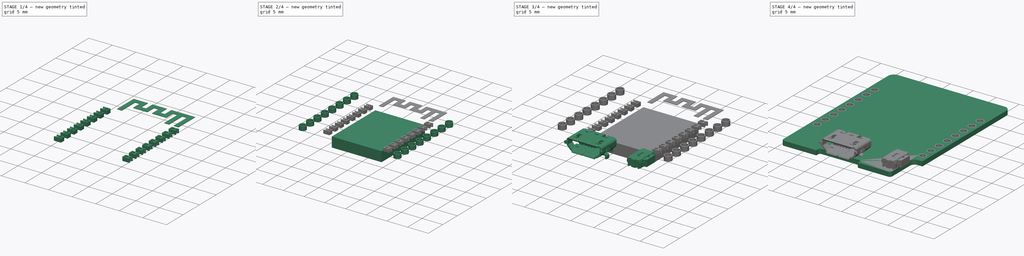
[diagram: build sequence overview — one tinted view per stage of 4, left to right]
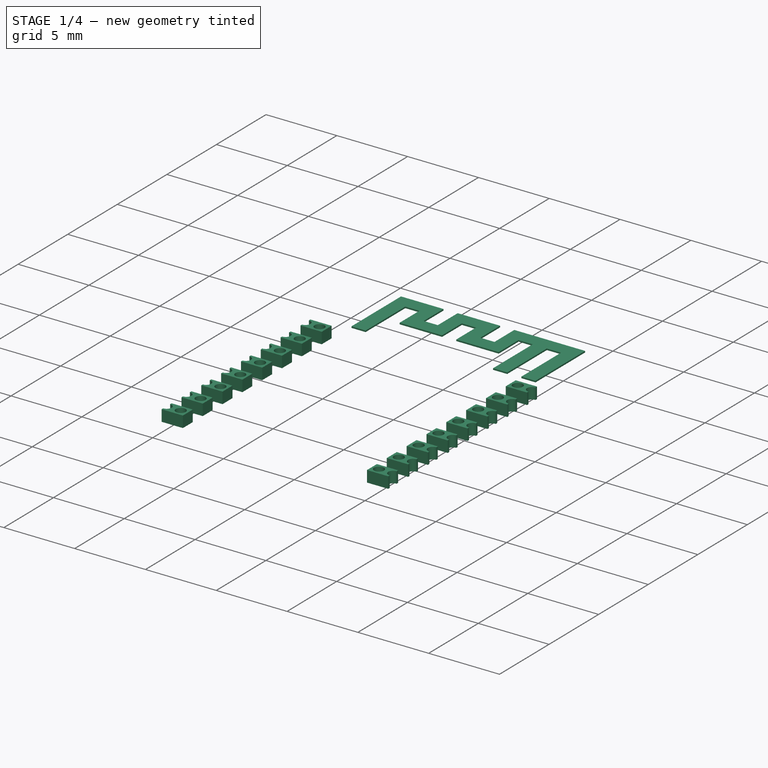
[diagram: stage 1 of 4 — iso view after this stage's code; geometry added in this stage tinted green]
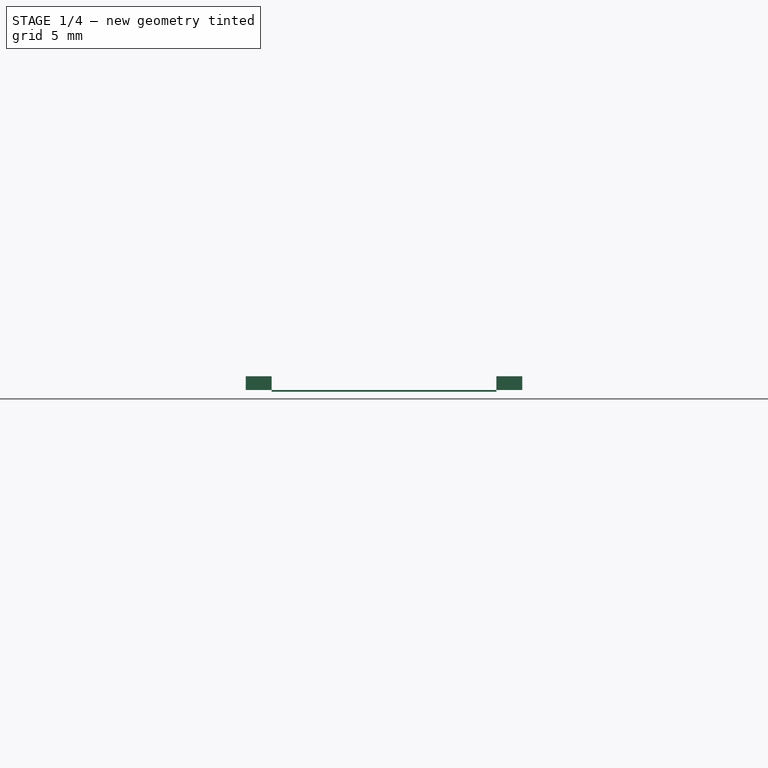
[diagram: stage 1 of 4 — front view after this stage's code; geometry added in this stage tinted green]
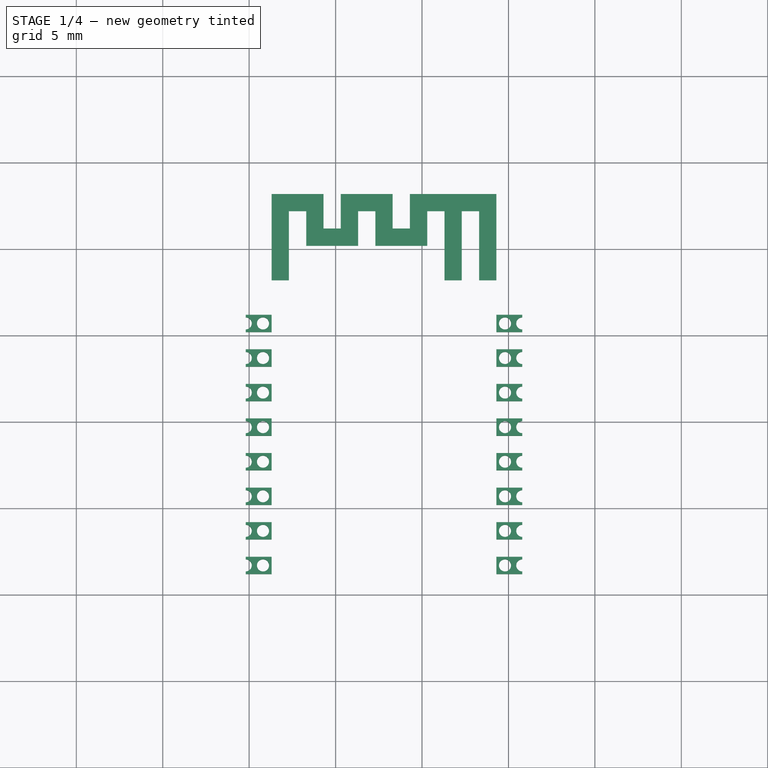
[diagram: stage 1 of 4 — top view after this stage's code; geometry added in this stage tinted green]
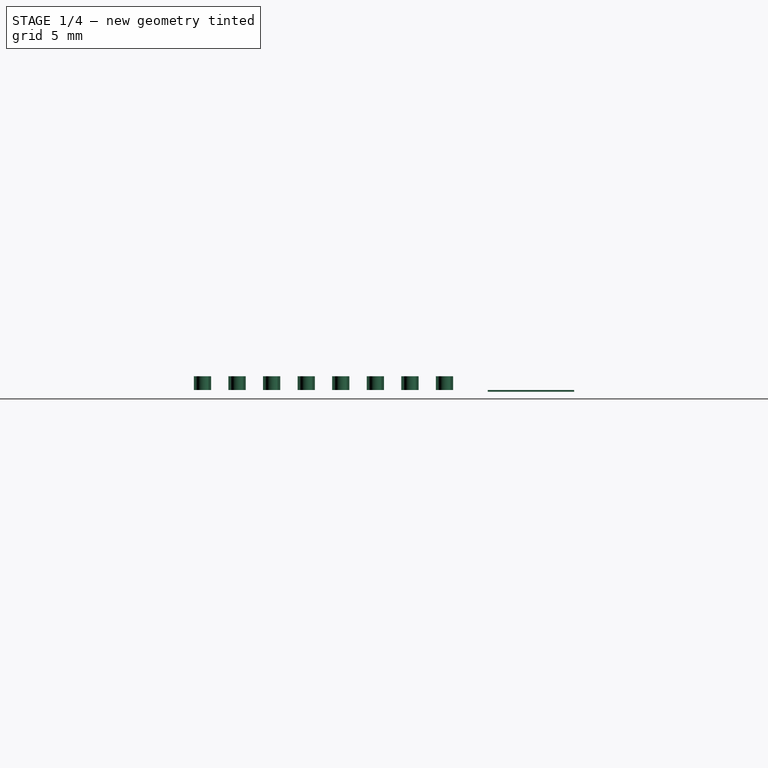
[diagram: stage 1 of 4 — right view after this stage's code; geometry added in this stage tinted green]
FCSTD DOCUMENT  (FreeCAD 0.16R)
Label: wemos-d1-mini
License: All rights reserved
LicenseURL: http://en.wikipedia.org/wiki/All_rights_reserved
objects: Part::FeaturePython×7, Sketcher::SketchObject×6, Part::Feature×6, PartDesign::Pad×6, App::DocumentObjectGroup×2, Part::Fillet×1, App::VRMLObject×1
note: 32 computed .brp shape members not serialized (recipe doc carries the construction recipe); baked Part::Feature solids carry a one-line shape summary decoded from their .brp

FEATURE [Sketcher::SketchObject] Sketch004  label="wifi-antenna-sketch"
  sketch-geometry (37):
    g0: LineSegment StartX=1.5 StartY=18 StartZ=0 EndX=1.5 EndY=23 EndZ=0
    g1: LineSegment StartX=1.5 StartY=23 StartZ=0 EndX=6.5 EndY=23 EndZ=0
    g2: LineSegment StartX=6.5 StartY=23 StartZ=0 EndX=6.5 EndY=21 EndZ=0
    g3: LineSegment StartX=6.5 StartY=21 StartZ=0 EndX=7.5 EndY=21 EndZ=0
    g4: LineSegment StartX=7.5 StartY=21 StartZ=0 EndX=7.5 EndY=23 EndZ=0
    g5: LineSegment StartX=7.5 StartY=23 StartZ=0 EndX=10.5 EndY=23 EndZ=0
    g6: LineSegment StartX=10.5 StartY=23 StartZ=0 EndX=10.5 EndY=21 EndZ=0
    g7: LineSegment StartX=12.5 StartY=20 StartZ=0 EndX=9.5 EndY=20 EndZ=0
    g8: LineSegment StartX=9.5 StartY=22 StartZ=0 EndX=8.5 EndY=22 EndZ=0
    g9: LineSegment StartX=8.5 StartY=20 StartZ=0 EndX=5.5 EndY=20 EndZ=0
    g10: LineSegment StartX=5.5 StartY=20 StartZ=0 EndX=5.5 EndY=22 EndZ=0
    g11: LineSegment StartX=5.5 StartY=22 StartZ=0 EndX=4.5 EndY=22 EndZ=0
    g12: LineSegment StartX=4.5 StartY=22 StartZ=0 EndX=4.5 EndY=18 EndZ=0
    g13: LineSegment StartX=4.5 StartY=18 StartZ=0 EndX=3.5 EndY=18 EndZ=0
    g14: LineSegment StartX=3.5 StartY=18 StartZ=0 EndX=3.5 EndY=22 EndZ=0
    g15: LineSegment StartX=3.5 StartY=22 StartZ=0 EndX=2.5 EndY=22 EndZ=0
    g16: LineSegment StartX=2.5 StartY=22 StartZ=0 EndX=2.5 EndY=18 EndZ=0
    g17: LineSegment StartX=2.5 StartY=18 StartZ=0 EndX=1.5 EndY=18 EndZ=0
    g18: LineSegment [constr] StartX=2.5 StartY=18 StartZ=0 EndX=3.5 EndY=18 EndZ=0
    g19: LineSegment [constr] StartX=4.5 StartY=18 StartZ=0 EndX=13.5 EndY=18 EndZ=0
    g20: LineSegment [constr] StartX=8.5 StartY=20 StartZ=0 EndX=9.5 EndY=20 EndZ=0
    g21: LineSegment [constr] StartX=3.5 StartY=22 StartZ=0 EndX=4.5 EndY=22 EndZ=0
    g22: LineSegment [constr] StartX=5.5 StartY=22 StartZ=0 EndX=8.5 EndY=22 EndZ=0
    g23: LineSegment [constr] StartX=10.5 StartY=21 StartZ=0 EndX=7.5 EndY=21 EndZ=0
    g24: LineSegment [constr] StartX=6.5 StartY=23 StartZ=0 EndX=7.5 EndY=23 EndZ=0
    g25: LineSegment [constr] StartX=10.5 StartY=23 StartZ=0 EndX=11.5 EndY=23 EndZ=0
    g26: LineSegment StartX=8.5 StartY=22 StartZ=0 EndX=8.5 EndY=20 EndZ=0
    g27: LineSegment StartX=9.5 StartY=22 StartZ=0 EndX=9.5 EndY=20 EndZ=0
    g28: LineSegment StartX=10.5 StartY=21 StartZ=0 EndX=11.5 EndY=21 EndZ=0
    g29: LineSegment StartX=11.5 StartY=21 StartZ=0 EndX=11.5 EndY=23 EndZ=0
    g30: LineSegment StartX=11.5 StartY=23 StartZ=0 EndX=14.5 EndY=23 EndZ=0
    g31: LineSegment StartX=14.5 StartY=23 StartZ=0 EndX=14.5 EndY=18 EndZ=0
    g32: LineSegment StartX=14.5 StartY=18 StartZ=0 EndX=13.5 EndY=18 EndZ=0
    g33: LineSegment StartX=13.5 StartY=18 StartZ=0 EndX=13.5 EndY=22 EndZ=0
    g34: LineSegment StartX=13.5 StartY=22 StartZ=0 EndX=12.5 EndY=22 EndZ=0
    g35: LineSegment StartX=12.5 StartY=22 StartZ=0 EndX=12.5 EndY=20 EndZ=0
    g36: LineSegment [constr] StartX=9.5 StartY=22 StartZ=0 EndX=12.5 EndY=22 EndZ=0
  constraints (102):
    c: Vertical(g0)
    c: Coincident(g0,g1)
    c: Horizontal(g1)
    c: Coincident(g1,g2)
    c: Vertical(g2)
    c: Coincident(g2,g3)
    c: Horizontal(g3)
    c: Coincident(g3,g4)
    c: Vertical(g4)
    c: Coincident(g4,g5)
    c: Horizontal(g5)
    c: Coincident(g5,g6)
    c: Vertical(g6)
    c: Horizontal(g7)
    c: Horizontal(g8)
    c: Horizontal(g9)
    c: Coincident(g9,g10)
    c: Vertical(g10)
    c: Coincident(g10,g11)
    c: Horizontal(g11)
    c: Coincident(g11,g12)
    c: Vertical(g12)
    c: Coincident(g12,g13)
    c: Coincident(g13,g14)
    c: Vertical(g14)
    c: Coincident(g14,g15)
    c: Coincident(g15,g16)
    c: Vertical(g16)
    c: Coincident(g16,g17)
    c: Coincident(g17,g0)
    c: Horizontal(g17)
    c: Horizontal(g13)
    c: Horizontal(g15)
    c: Coincident(g18,g13)
    c: Horizontal(g18)
    c: Horizontal(g19)
    c: Coincident(g20,g7)
    c: Coincident(g21,g14)
    c: Coincident(g21,g11)
    c: Horizontal(g21)
    c: Coincident(g22,g10)
    c: Horizontal(g22)
    c: Coincident(g23,g6)
    c: Coincident(g23,g3)
    c: Horizontal(g23)
    c: Coincident(g24,g4)
    c: Horizontal(g24)
    c: Horizontal(g25)
    c: Horizontal(g20)
    c: DistanceY(g0,g0) = 5
    c: Coincident(g16,g18)
    c: Coincident(g12,g19)
    c: Equal(g8,g3)
    c: Equal(g3,g11)
    c: Equal(g11,g13)
    c: Equal(g13,g17)
    c: Equal(g17,g15)
    c: Coincident(g1,g24)
    c: Coincident(g5,g25)
    c: Coincident(g8,g22)
    c: DistanceY(g15,g0) = 1
    c: Vertical(g26)
    c: Coincident(g27,g7)
    c: Vertical(g27)
    c: Coincident(g9,g20)
    c: Coincident(g9,g26)
    c: Coincident(g8,g26)
    c: Coincident(g8,g27)
    c: Coincident(g6,g28)
    c: Horizontal(g28)
    c: Coincident(g28,g29)
    c: Vertical(g29)
    c: Coincident(g29,g30)
    c: Horizontal(g30)
    c: DistanceY(g9,g1) = 3
    c: Coincident(g25,g29)
    c: Coincident(g30,g31)
    c: Vertical(g31)
    c: Coincident(g31,g32)
    c: Coincident(g32,g19)
    c: Horizontal(g32)
    c: Coincident(g32,g33)
    c: Vertical(g33)
    c: Coincident(g33,g34)
    c: Horizontal(g34)
    c: Coincident(g34,g35)
    c: Vertical(g35)
    c: Coincident(g7,g35)
    c: Equal(g13,g32)
    c: Equal(g32,g34)
    c: Equal(g28,g34)
    c: DistanceX(g9,g9) = 3
    c: DistanceX(g5,g5) = 3
    c: DistanceX(g30,g30) = 3
    c: DistanceX(g7,g7) = 3
    c: DistanceX(g1,g1) = 5
    c: DistanceY(g9,g3) = 1
    c: Coincident(g36,g8)
    c: Horizontal(g36)
    c: Coincident(g34,g36)
    c: DistanceX(g-1,g0) = 1.5
    c: DistanceY(g-1,g31) = 18
FEATURE [PartDesign::Pad] Pad004
  Length = 0.1
  Length2 = 100
  Sketch = -> Sketch004
  Type = 0
FEATURE [Part::FeaturePython] Clone006  label="Clone of Pad004"  # Draft clone (typed FeaturePython)
  Objects = -> [Pad004]
  Placement = pos=(20.8,10.2,-0.8) rot=(0,1,0;3.14159rad)
  Scale = (1,1,1)
FEATURE [App::VRMLObject] LED_1206
  Placement = pos=(7,27.0935,-0.8) rot=(0,1,0;3.14159rad)
FEATURE [Sketcher::SketchObject] Sketch005  label="pcb-wifi-contacts-sketch"
  sketch-geometry (123):
    g0: Circle CenterX=1 CenterY=1.5 CenterZ=0 NormalX=0 NormalY=0 NormalZ=1 Radius=0.35
    g1: LineSegment [constr] StartX=0 StartY=1.5 StartZ=0 EndX=1 EndY=1.5 EndZ=0
    g2: LineSegment [constr] StartX=1 StartY=1.5 StartZ=0 EndX=1 EndY=0 EndZ=0
    g3: LineSegment [constr] StartX=15 StartY=0 StartZ=0 EndX=15 EndY=1.5 EndZ=0
    g4: Circle CenterX=15 CenterY=1.5 CenterZ=0 NormalX=0 NormalY=0 NormalZ=1 Radius=0.35
    g5: ArcOfCircle CenterX=0 CenterY=1.5 CenterZ=0 NormalX=0 NormalY=0 NormalZ=1 Radius=0.35 StartAngle=4.71239 EndAngle=7.85398
    g6: LineSegment StartX=0 StartY=1.85 StartZ=0 EndX=0 EndY=2 EndZ=0
    g7: LineSegment StartX=0 StartY=2 StartZ=0 EndX=1.5 EndY=2 EndZ=0
    g8: LineSegment StartX=1.5 StartY=2 StartZ=0 EndX=1.5 EndY=1 EndZ=0
    g9: LineSegment StartX=1.5 StartY=1 StartZ=0 EndX=0 EndY=1 EndZ=0
    g10: LineSegment StartX=0 StartY=1 StartZ=0 EndX=0 EndY=1.15 EndZ=0
    g11: ArcOfCircle CenterX=16 CenterY=1.5 CenterZ=0 NormalX=0 NormalY=0 NormalZ=1 Radius=0.35 StartAngle=1.5708 EndAngle=4.71239
    g12: LineSegment StartX=16 StartY=1.85 StartZ=0 EndX=16 EndY=2 EndZ=0
    g13: LineSegment StartX=16 StartY=2 StartZ=0 EndX=14.5 EndY=2 EndZ=0
    g14: LineSegment StartX=14.5 StartY=2 StartZ=0 EndX=14.5 EndY=1 EndZ=0
    g15: LineSegment StartX=14.5 StartY=1 StartZ=0 EndX=16 EndY=1 EndZ=0
    g16: LineSegment StartX=16 StartY=1 StartZ=0 EndX=16 EndY=1.15 EndZ=0
    g17: LineSegment [constr] StartX=1 StartY=1.5 StartZ=0 EndX=1 EndY=3.5 EndZ=0
    g18: Circle CenterX=1 CenterY=3.5 CenterZ=0 NormalX=0 NormalY=0 NormalZ=1 Radius=0.35
    g19: Circle CenterX=15 CenterY=3.5 CenterZ=0 NormalX=0 NormalY=0 NormalZ=1 Radius=0.35
    g20: ArcOfCircle CenterX=0 CenterY=3.5 CenterZ=0 NormalX=0 NormalY=0 NormalZ=1 Radius=0.35 StartAngle=4.71239 EndAngle=7.85398
    g21: LineSegment StartX=0 StartY=3.85 StartZ=0 EndX=0 EndY=4 EndZ=0
    g22: LineSegment StartX=0 StartY=4 StartZ=0 EndX=1.5 EndY=4 EndZ=0
    g23: LineSegment StartX=1.5 StartY=4 StartZ=0 EndX=1.5 EndY=3 EndZ=0
    g24: LineSegment StartX=1.5 StartY=3 StartZ=0 EndX=0 EndY=3 EndZ=0
    g25: LineSegment StartX=0 StartY=3 StartZ=0 EndX=0 EndY=3.15 EndZ=0
    g26: ArcOfCircle CenterX=16 CenterY=3.5 CenterZ=0 NormalX=0 NormalY=0 NormalZ=1 Radius=0.35 StartAngle=1.5708 EndAngle=4.71239
    g27: LineSegment StartX=16 StartY=3.85 StartZ=0 EndX=16 EndY=4 EndZ=0
    g28: LineSegment StartX=16 StartY=4 StartZ=0 EndX=14.5 EndY=4 EndZ=0
    g29: LineSegment StartX=14.5 StartY=4 StartZ=0 EndX=14.5 EndY=3 EndZ=0
    g30: LineSegment StartX=14.5 StartY=3 StartZ=0 EndX=16 EndY=3 EndZ=0
    g31: LineSegment StartX=16 StartY=3 StartZ=0 EndX=16 EndY=3.15 EndZ=0
    g32: LineSegment [constr] StartX=1 StartY=1.5 StartZ=0 EndX=1 EndY=3.5 EndZ=0
    g33: Circle CenterX=1 CenterY=5.5 CenterZ=0 NormalX=0 NormalY=0 NormalZ=1 Radius=0.35
    g34: Circle CenterX=15 CenterY=5.5 CenterZ=0 NormalX=0 NormalY=0 NormalZ=1 Radius=0.35
    g35: ArcOfCircle CenterX=0 CenterY=5.5 CenterZ=0 NormalX=0 NormalY=0 NormalZ=1 Radius=0.35 StartAngle=4.71239 EndAngle=7.85398
    g36: LineSegment StartX=0 StartY=5.85 StartZ=0 EndX=0 EndY=6 EndZ=0
    g37: LineSegment StartX=0 StartY=6 StartZ=0 EndX=1.5 EndY=6 EndZ=0
    g38: LineSegment StartX=1.5 StartY=6 StartZ=0 EndX=1.5 EndY=5 EndZ=0
    g39: LineSegment StartX=1.5 StartY=5 StartZ=0 EndX=0 EndY=5 EndZ=0
    g40: LineSegment StartX=0 StartY=5 StartZ=0 EndX=0 EndY=5.15 EndZ=0
    g41: ArcOfCircle CenterX=16 CenterY=5.5 CenterZ=0 NormalX=0 NormalY=0 NormalZ=1 Radius=0.35 StartAngle=1.5708 EndAngle=4.71239
    g42: LineSegment StartX=16 StartY=5.85 StartZ=0 EndX=16 EndY=6 EndZ=0
    g43: LineSegment StartX=16 StartY=6 StartZ=0 EndX=14.5 EndY=6 EndZ=0
    g44: LineSegment StartX=14.5 StartY=6 StartZ=0 EndX=14.5 EndY=5 EndZ=0
    g45: LineSegment StartX=14.5 StartY=5 StartZ=0 EndX=16 EndY=5 EndZ=0
    g46: LineSegment StartX=16 StartY=5 StartZ=0 EndX=16 EndY=5.15 EndZ=0
    g47: LineSegment [constr] StartX=1 StartY=3.5 StartZ=0 EndX=1 EndY=5.5 EndZ=0
    g48: Circle CenterX=1 CenterY=7.5 CenterZ=0 NormalX=0 NormalY=0 NormalZ=1 Radius=0.35
    g49: Circle CenterX=15 CenterY=7.5 CenterZ=0 NormalX=0 NormalY=0 NormalZ=1 Radius=0.35
    g50: ArcOfCircle CenterX=0 CenterY=7.5 CenterZ=0 NormalX=0 NormalY=0 NormalZ=1 Radius=0.35 StartAngle=4.71239 EndAngle=7.85398
    g51: LineSegment StartX=0 StartY=7.85 StartZ=0 EndX=0 EndY=8 EndZ=0
    g52: LineSegment StartX=0 StartY=8 StartZ=0 EndX=1.5 EndY=8 EndZ=0
    g53: LineSegment StartX=1.5 StartY=8 StartZ=0 EndX=1.5 EndY=7 EndZ=0
    g54: LineSegment StartX=1.5 StartY=7 StartZ=0 EndX=0 EndY=7 EndZ=0
    g55: LineSegment StartX=0 StartY=7 StartZ=0 EndX=0 EndY=7.15 EndZ=0
    g56: ArcOfCircle CenterX=16 CenterY=7.5 CenterZ=0 NormalX=0 NormalY=0 NormalZ=1 Radius=0.35 StartAngle=1.5708 EndAngle=4.71239
    g57: LineSegment StartX=16 StartY=7.85 StartZ=0 EndX=16 EndY=8 EndZ=0
    g58: LineSegment StartX=16 StartY=8 StartZ=0 EndX=14.5 EndY=8 EndZ=0
    g59: LineSegment StartX=14.5 StartY=8 StartZ=0 EndX=14.5 EndY=7 EndZ=0
    g60: LineSegment StartX=14.5 StartY=7 StartZ=0 EndX=16 EndY=7 EndZ=0
    g61: LineSegment StartX=16 StartY=7 StartZ=0 EndX=16 EndY=7.15 EndZ=0
    g62: LineSegment [constr] StartX=1 StartY=5.5 StartZ=0 EndX=1 EndY=7.5 EndZ=0
    g63: Circle CenterX=1 CenterY=9.5 CenterZ=0 NormalX=0 NormalY=0 NormalZ=1 Radius=0.35
    g64: Circle CenterX=15 CenterY=9.5 CenterZ=0 NormalX=0 NormalY=0 NormalZ=1 Radius=0.35
    g65: ArcOfCircle CenterX=0 CenterY=9.5 CenterZ=0 NormalX=0 NormalY=0 NormalZ=1 Radius=0.35 StartAngle=4.71239 EndAngle=7.85398
    g66: LineSegment StartX=0 StartY=9.85 StartZ=0 EndX=0 EndY=10 EndZ=0
    g67: LineSegment StartX=0 StartY=10 StartZ=0 EndX=1.5 EndY=10 EndZ=0
    g68: LineSegment StartX=1.5 StartY=10 StartZ=0 EndX=1.5 EndY=9 EndZ=0
    g69: LineSegment StartX=1.5 StartY=9 StartZ=0 EndX=0 EndY=9 EndZ=0
    g70: LineSegment StartX=0 StartY=9 StartZ=0 EndX=0 EndY=9.15 EndZ=0
    g71: ArcOfCircle CenterX=16 CenterY=9.5 CenterZ=0 NormalX=0 NormalY=0 NormalZ=1 Radius=0.35 StartAngle=1.5708 EndAngle=4.71239
    g72: LineSegment StartX=16 StartY=9.85 StartZ=0 EndX=16 EndY=10 EndZ=0
    g73: LineSegment StartX=16 StartY=10 StartZ=0 EndX=14.5 EndY=10 EndZ=0
    g74: LineSegment StartX=14.5 StartY=10 StartZ=0 EndX=14.5 EndY=9 EndZ=0
    g75: LineSegment StartX=14.5 StartY=9 StartZ=0 EndX=16 EndY=9 EndZ=0
    g76: LineSegment StartX=16 StartY=9 StartZ=0 EndX=16 EndY=9.15 EndZ=0
    g77: LineSegment [constr] StartX=1 StartY=7.5 StartZ=0 EndX=1 EndY=9.5 EndZ=0
    g78: Circle CenterX=1 CenterY=11.5 CenterZ=0 NormalX=0 NormalY=0 NormalZ=1 Radius=0.35
    g79: Circle CenterX=15 CenterY=11.5 CenterZ=0 NormalX=0 NormalY=0 NormalZ=1 Radius=0.35
    g80: ArcOfCircle CenterX=0 CenterY=11.5 CenterZ=0 NormalX=0 NormalY=0 NormalZ=1 Radius=0.35 StartAngle=4.71239 EndAngle=7.85398
    g81: LineSegment StartX=0 StartY=11.85 StartZ=0 EndX=0 EndY=12 EndZ=0
    g82: LineSegment StartX=0 StartY=12 StartZ=0 EndX=1.5 EndY=12 EndZ=0
    g83: LineSegment StartX=1.5 StartY=12 StartZ=0 EndX=1.5 EndY=11 EndZ=0
    g84: LineSegment StartX=1.5 StartY=11 StartZ=0 EndX=0 EndY=11 EndZ=0
    g85: LineSegment StartX=0 StartY=11 StartZ=0 EndX=0 EndY=11.15 EndZ=0
    g86: ArcOfCircle CenterX=16 CenterY=11.5 CenterZ=0 NormalX=0 NormalY=0 NormalZ=1 Radius=0.35 StartAngle=1.5708 EndAngle=4.71239
    g87: LineSegment StartX=16 StartY=11.85 StartZ=0 EndX=16 EndY=12 EndZ=0
    g88: LineSegment StartX=16 StartY=12 StartZ=0 EndX=14.5 EndY=12 EndZ=0
    g89: LineSegment StartX=14.5 StartY=12 StartZ=0 EndX=14.5 EndY=11 EndZ=0
    g90: LineSegment StartX=14.5 StartY=11 StartZ=0 EndX=16 EndY=11 EndZ=0
    g91: LineSegment StartX=16 StartY=11 StartZ=0 EndX=16 EndY=11.15 EndZ=0
    g92: LineSegment [constr] StartX=1 StartY=9.5 StartZ=0 EndX=1 EndY=11.5 EndZ=0
    g93: Circle CenterX=1 CenterY=13.5 CenterZ=0 NormalX=0 NormalY=0 NormalZ=1 Radius=0.35
    g94: Circle CenterX=15 CenterY=13.5 CenterZ=0 NormalX=0 NormalY=0 NormalZ=1 Radius=0.35
    g95: ArcOfCircle CenterX=0 CenterY=13.5 CenterZ=0 NormalX=0 NormalY=0 NormalZ=1 Radius=0.35 StartAngle=4.71239 EndAngle=7.85398
    g96: LineSegment StartX=0 StartY=13.85 StartZ=0 EndX=0 EndY=14 EndZ=0
    g97: LineSegment StartX=0 StartY=14 StartZ=0 EndX=1.5 EndY=14 EndZ=0
    g98: LineSegment StartX=1.5 StartY=14 StartZ=0 EndX=1.5 EndY=13 EndZ=0
    g99: LineSegment StartX=1.5 StartY=13 StartZ=0 EndX=0 EndY=13 EndZ=0
    g100: LineSegment StartX=0 StartY=13 StartZ=0 EndX=0 EndY=13.15 EndZ=0
    g101: ArcOfCircle CenterX=16 CenterY=13.5 CenterZ=0 NormalX=0 NormalY=0 NormalZ=1 Radius=0.35 StartAngle=1.5708 EndAngle=4.71239
    g102: LineSegment StartX=16 StartY=13.85 StartZ=0 EndX=16 EndY=14 EndZ=0
    g103: LineSegment StartX=16 StartY=14 StartZ=0 EndX=14.5 EndY=14 EndZ=0
    g104: LineSegment StartX=14.5 StartY=14 StartZ=0 EndX=14.5 EndY=13 EndZ=0
    g105: LineSegment StartX=14.5 StartY=13 StartZ=0 EndX=16 EndY=13 EndZ=0
    g106: LineSegment StartX=16 StartY=13 StartZ=0 EndX=16 EndY=13.15 EndZ=0
    g107: LineSegment [constr] StartX=1 StartY=11.5 StartZ=0 EndX=1 EndY=13.5 EndZ=0
    g108: Circle CenterX=1 CenterY=15.5 CenterZ=0 NormalX=0 NormalY=0 NormalZ=1 Radius=0.35
    g109: Circle CenterX=15 CenterY=15.5 CenterZ=0 NormalX=0 NormalY=0 NormalZ=1 Radius=0.35
    g110: ArcOfCircle CenterX=0 CenterY=15.5 CenterZ=0 NormalX=0 NormalY=0 NormalZ=1 Radius=0.35 StartAngle=4.71239 EndAngle=7.85398
    g111: LineSegment StartX=0 StartY=15.85 StartZ=0 EndX=0 EndY=16 EndZ=0
    g112: LineSegment StartX=0 StartY=16 StartZ=0 EndX=1.5 EndY=16 EndZ=0
    g113: LineSegment StartX=1.5 StartY=16 StartZ=0 EndX=1.5 EndY=15 EndZ=0
    g114: LineSegment StartX=1.5 StartY=15 StartZ=0 EndX=0 EndY=15 EndZ=0
    g115: LineSegment StartX=0 StartY=15 StartZ=0 EndX=0 EndY=15.15 EndZ=0
    g116: ArcOfCircle CenterX=16 CenterY=15.5 CenterZ=0 NormalX=0 NormalY=0 NormalZ=1 Radius=0.35 StartAngle=1.5708 EndAngle=4.71239
    g117: LineSegment StartX=16 StartY=15.85 StartZ=0 EndX=16 EndY=16 EndZ=0
    g118: LineSegment StartX=16 StartY=16 StartZ=0 EndX=14.5 EndY=16 EndZ=0
    g119: LineSegment StartX=14.5 StartY=16 StartZ=0 EndX=14.5 EndY=15 EndZ=0
    g120: LineSegment StartX=14.5 StartY=15 StartZ=0 EndX=16 EndY=15 EndZ=0
    g121: LineSegment StartX=16 StartY=15 StartZ=0 EndX=16 EndY=15.15 EndZ=0
    g122: LineSegment [constr] StartX=1 StartY=13.5 StartZ=0 EndX=1 EndY=15.5 EndZ=0
  constraints (254):
    c: Radius(g0) = 0.35
    c: PointOnObject(g1,g-2)
    c: Coincident(g1,g0)
    c: Horizontal(g1)
    c: Coincident(g2,g0)
    c: PointOnObject(g2,g-1)
    c: Vertical(g2)
    c: DistanceX(g1,g1) = 1
    c: DistanceY(g2,g2) = 1.5
    c: Vertical(g3)
    c: DistanceX(g2,g3) = 14
    c: Equal(g2,g3)
    c: Coincident(g4,g3)
    c: Radius(g4) = 0.35
    c: Coincident(g5,g1)
    c: PointOnObject(g5,g-2)
    c: Radius(g5) = 0.35
    c: PointOnObject(g6,g-2)
    c: Vertical(g6)
    c: Coincident(g6,g7)
    c: Horizontal(g7)
    c: Coincident(g7,g8)
    c: Vertical(g8)
    c: Coincident(g8,g9)
    c: Horizontal(g9)
    c: Coincident(g9,g10)
    c: Coincident(g10,g5)
    c: Vertical(g10)
    c: Radius(g11) = 0.35
    c: Vertical(g12)
    c: Coincident(g12,g13)
    c: Horizontal(g13)
    c: Coincident(g13,g14)
    c: Vertical(g14)
    c: Coincident(g14,g15)
    c: Horizontal(g15)
    c: Coincident(g15,g16)
    c: Vertical(g16)
    c: Coincident(g11,g16)
    c: Coincident(g0,g17)
    c: Distance(g17) = 2
    c: Angle(g17) = 1.5708
    c: Coincident(g5,g6)
    c: Coincident(g11,g12)
    c: Equal(g0,g18) = 0.35
    c: Equal(g4,g19) = 0.35
    c: Equal(g5,g20) = 0.35
    c: Vertical(g21)
    c: Coincident(g21,g22)
    c: Horizontal(g22)
    c: Coincident(g22,g23)
    c: Vertical(g23)
    c: Coincident(g23,g24)
    c: Horizontal(g24)
    c: Coincident(g24,g25)
    c: Coincident(g25,g20)
    c: Vertical(g25)
    c: Equal(g11,g26) = 0.35
    c: Vertical(g27)
    c: Coincident(g27,g28)
    c: Horizontal(g28)
    c: Coincident(g28,g29)
    c: Vertical(g29)
    c: Coincident(g29,g30)
    c: Horizontal(g30)
    c: Coincident(g30,g31)
    c: Vertical(g31)
    c: Coincident(g26,g31)
    c: Coincident(g20,g21)
    c: Coincident(g26,g27)
    c: Coincident(g0,g32)
    c: Coincident(g18,g32)
    c: Distance(g32) = 2
    c: Angle(g32) = 1.5708
    c: Equal(g0,g33) = 0.35
    c: Equal(g4,g34) = 0.35
    c: Equal(g5,g35) = 0.35
    c: Vertical(g36)
    c: Coincident(g36,g37)
    c: Horizontal(g37)
    c: Coincident(g37,g38)
    c: Vertical(g38)
    c: Coincident(g38,g39)
    c: Horizontal(g39)
    c: Coincident(g39,g40)
    c: Coincident(g40,g35)
    c: Vertical(g40)
    c: Equal(g11,g41) = 0.35
    c: Vertical(g42)
    c: Coincident(g42,g43)
    c: Horizontal(g43)
    c: Coincident(g43,g44)
    c: Vertical(g44)
    c: Coincident(g44,g45)
    c: Horizontal(g45)
    c: Coincident(g45,g46)
    c: Vertical(g46)
    c: Coincident(g41,g46)
    c: Coincident(g35,g36)
    c: Coincident(g41,g42)
    c: Coincident(g18,g47)
    c: Coincident(g33,g47)
    c: Equal(g32,g47)
    c: Parallel(g47,g32)
    c: Equal(g0,g48) = 0.35
    c: Equal(g4,g49) = 0.35
    c: Equal(g5,g50) = 0.35
    c: Vertical(g51)
    c: Coincident(g51,g52)
    c: Horizontal(g52)
    c: Coincident(g52,g53)
    c: Vertical(g53)
    c: Coincident(g53,g54)
    c: Horizontal(g54)
    c: Coincident(g54,g55)
    c: Coincident(g55,g50)
    c: Vertical(g55)
    c: Equal(g11,g56) = 0.35
    c: Vertical(g57)
    c: Coincident(g57,g58)
    c: Horizontal(g58)
    c: Coincident(g58,g59)
    c: Vertical(g59)
    c: Coincident(g59,g60)
    c: Horizontal(g60)
    c: Coincident(g60,g61)
    c: Vertical(g61)
    c: Coincident(g56,g61)
    c: Coincident(g50,g51)
    c: Coincident(g56,g57)
    c: Coincident(g33,g62)
    c: Coincident(g48,g62)
    c: Equal(g32,g62)
    c: Parallel(g62,g32)
    c: Equal(g0,g63) = 0.35
    c: Equal(g4,g64) = 0.35
    c: Equal(g5,g65) = 0.35
    c: Vertical(g66)
    c: Coincident(g66,g67)
    c: Horizontal(g67)
    c: Coincident(g67,g68)
    c: Vertical(g68)
    c: Coincident(g68,g69)
    c: Horizontal(g69)
    c: Coincident(g69,g70)
    c: Coincident(g70,g65)
    c: Vertical(g70)
    c: Equal(g11,g71) = 0.35
    c: Vertical(g72)
    c: Coincident(g72,g73)
    c: Horizontal(g73)
    c: Coincident(g73,g74)
    c: Vertical(g74)
    c: Coincident(g74,g75)
    c: Horizontal(g75)
    c: Coincident(g75,g76)
    c: Vertical(g76)
    c: Coincident(g71,g76)
    c: Coincident(g65,g66)
    c: Coincident(g71,g72)
    c: Coincident(g48,g77)
    c: Coincident(g63,g77)
    c: Equal(g32,g77)
    c: Parallel(g77,g32)
    c: Equal(g0,g78) = 0.35
    c: Equal(g4,g79) = 0.35
    c: Equal(g5,g80) = 0.35
    c: Vertical(g81)
    c: Coincident(g81,g82)
    c: Horizontal(g82)
    c: Coincident(g82,g83)
    c: Vertical(g83)
    c: Coincident(g83,g84)
    c: Horizontal(g84)
    c: Coincident(g84,g85)
    c: Coincident(g85,g80)
    c: Vertical(g85)
    c: Equal(g11,g86) = 0.35
    c: Vertical(g87)
    c: Coincident(g87,g88)
    c: Horizontal(g88)
    c: Coincident(g88,g89)
    c: Vertical(g89)
    c: Coincident(g89,g90)
    c: Horizontal(g90)
    c: Coincident(g90,g91)
    c: Vertical(g91)
    c: Coincident(g86,g91)
    c: Coincident(g80,g81)
    c: Coincident(g86,g87)
    c: Coincident(g63,g92)
    c: Coincident(g78,g92)
    c: Equal(g32,g92)
    c: Parallel(g92,g32)
    c: Equal(g0,g93) = 0.35
    c: Equal(g4,g94) = 0.35
    c: Equal(g5,g95) = 0.35
    c: Vertical(g96)
    c: Coincident(g96,g97)
    c: Horizontal(g97)
    c: Coincident(g97,g98)
    c: Vertical(g98)
    c: Coincident(g98,g99)
    c: Horizontal(g99)
    c: Coincident(g99,g100)
    c: Coincident(g100,g95)
    c: Vertical(g100)
    c: Equal(g11,g101) = 0.35
    c: Vertical(g102)
    c: Coincident(g102,g103)
    c: Horizontal(g103)
    c: Coincident(g103,g104)
    c: Vertical(g104)
    c: Coincident(g104,g105)
    c: Horizontal(g105)
    c: Coincident(g105,g106)
    c: Vertical(g106)
    c: Coincident(g101,g106)
    c: Coincident(g95,g96)
    c: Coincident(g101,g102)
    c: Coincident(g78,g107)
    c: Coincident(g93,g107)
    c: Equal(g32,g107)
    c: Parallel(g107,g32)
    c: Equal(g0,g108) = 0.35
    c: Equal(g4,g109) = 0.35
    c: Equal(g5,g110) = 0.35
    c: Vertical(g111)
    c: Coincident(g111,g112)
    c: Horizontal(g112)
    c: Coincident(g112,g113)
    c: Vertical(g113)
    c: Coincident(g113,g114)
    c: Horizontal(g114)
    c: Coincident(g114,g115)
    c: Coincident(g115,g110)
    c: Vertical(g115)
    c: Equal(g11,g116) = 0.35
    c: Vertical(g117)
    c: Coincident(g117,g118)
    c: Horizontal(g118)
    c: Coincident(g118,g119)
    c: Vertical(g119)
    c: Coincident(g119,g120)
    c: Horizontal(g120)
    c: Coincident(g120,g121)
    c: Vertical(g121)
    c: Coincident(g116,g121)
    c: Coincident(g110,g111)
    c: Coincident(g116,g117)
    c: Coincident(g93,g122)
    c: Coincident(g108,g122)
    c: Equal(g32,g122)
    c: Parallel(g122,g32)
FEATURE [PartDesign::Pad] Pad005
  Length = 0.8
  Length2 = 100
  Sketch = -> Sketch005
  Type = 0
FEATURE [Part::FeaturePython] Clone007  label="Clone of Pad005"  # Draft clone (typed FeaturePython)
  Objects = -> [Pad005]
  Placement = pos=(4.8,10.2,-0.8) rot=(0,0,1;0rad)
  Scale = (1,1,1)
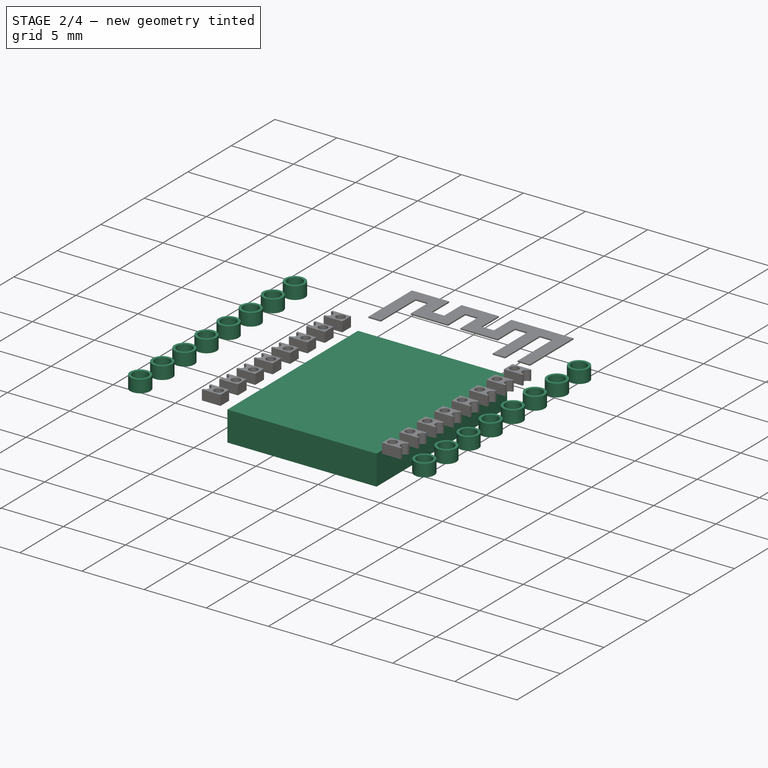
[diagram: stage 2 of 4 — iso view after this stage's code; geometry added in this stage tinted green]
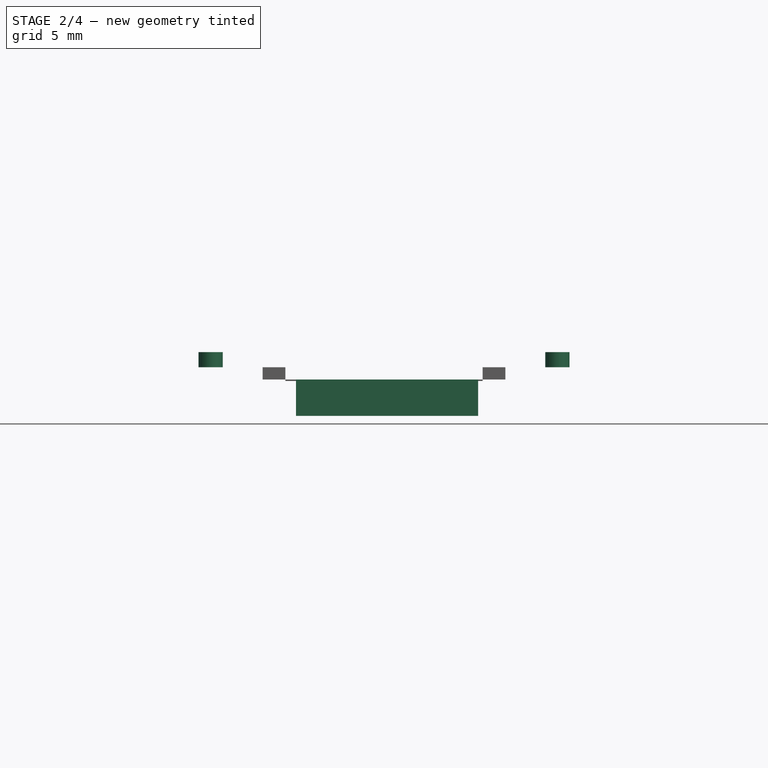
[diagram: stage 2 of 4 — front view after this stage's code; geometry added in this stage tinted green]
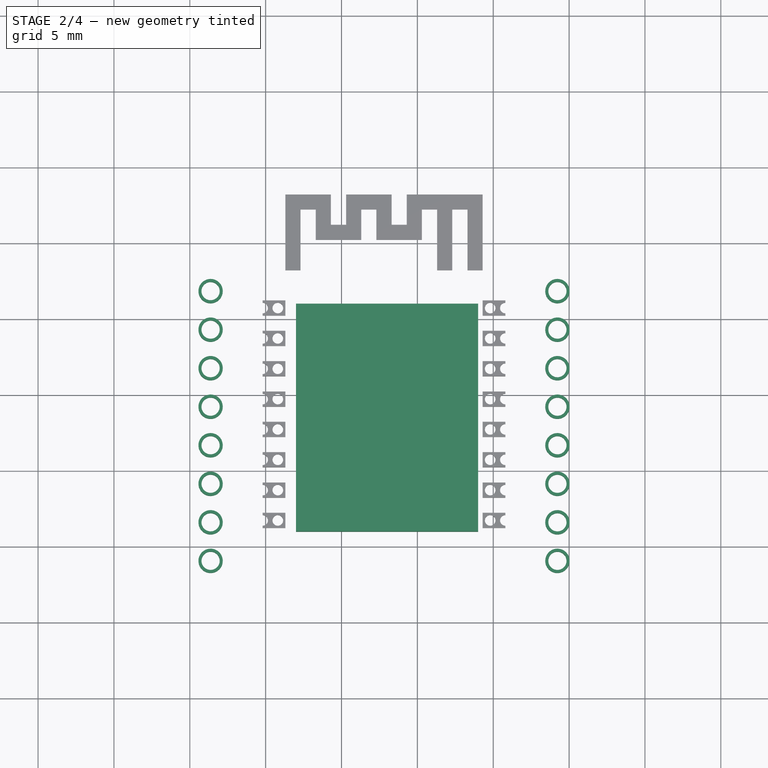
[diagram: stage 2 of 4 — top view after this stage's code; geometry added in this stage tinted green]
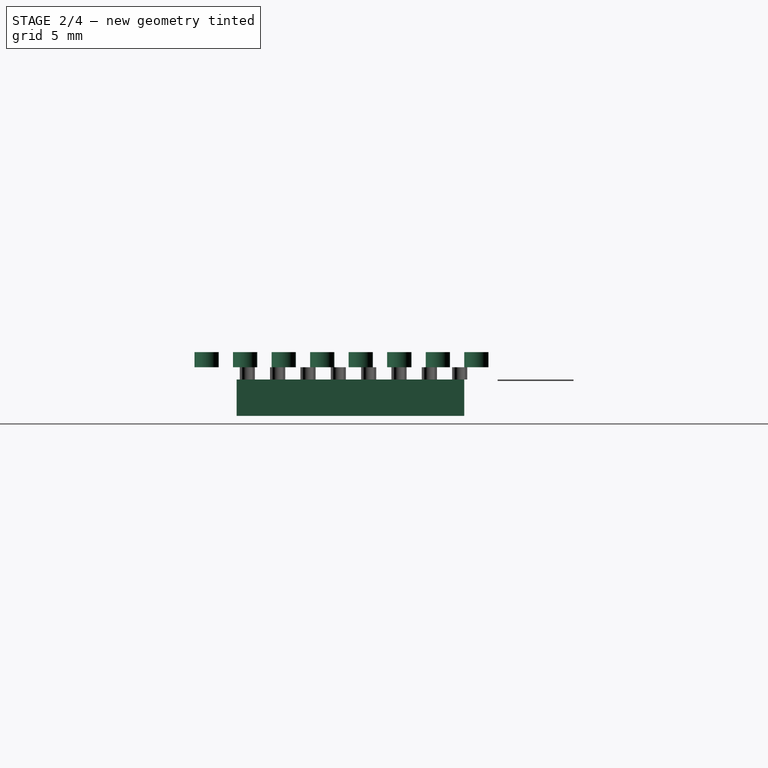
[diagram: stage 2 of 4 — right view after this stage's code; geometry added in this stage tinted green]
FEATURE [PartDesign::Pad] Pad001  label="wifi-module"
  Length = 2.4
  Length2 = 100
  Sketch = -> Sketch002
  Type = 0
FEATURE [Part::FeaturePython] Clone002  label="Clone of wifi-module"  # Draft clone (typed FeaturePython)
  Objects = -> [Pad001]
  Placement = pos=(7,11,-3.2) rot=(0,0,1;0rad)
  Scale = (1,1,1)
FEATURE [Sketcher::SketchObject] Sketch003  label="pcb-base001"
  sketch-geometry (60):
    g0: Circle CenterX=1.37 CenterY=26.8 CenterZ=0 NormalX=0 NormalY=0 NormalZ=1 Radius=0.6
    g1: Circle CenterX=1.37 CenterY=24.26 CenterZ=0 NormalX=0 NormalY=0 NormalZ=1 Radius=0.6
    g2: LineSegment [constr] StartX=1.37 StartY=26.8 StartZ=0 EndX=1.37 EndY=24.26 EndZ=0
    g3: Circle CenterX=1.37 CenterY=21.72 CenterZ=0 NormalX=0 NormalY=0 NormalZ=1 Radius=0.6
    g4: LineSegment [constr] StartX=1.37 StartY=24.26 StartZ=0 EndX=1.37 EndY=21.72 EndZ=0
    g5: Circle CenterX=1.37 CenterY=19.18 CenterZ=0 NormalX=0 NormalY=0 NormalZ=1 Radius=0.6
    g6: LineSegment [constr] StartX=1.37 StartY=21.72 StartZ=0 EndX=1.37 EndY=19.18 EndZ=0
    g7: Circle CenterX=1.37 CenterY=16.64 CenterZ=0 NormalX=0 NormalY=0 NormalZ=1 Radius=0.6
    g8: LineSegment [constr] StartX=1.37 StartY=19.18 StartZ=0 EndX=1.37 EndY=16.64 EndZ=0
    g9: Circle CenterX=1.37 CenterY=14.1 CenterZ=0 NormalX=0 NormalY=0 NormalZ=1 Radius=0.6
    g10: LineSegment [constr] StartX=1.37 StartY=16.64 StartZ=0 EndX=1.37 EndY=14.1 EndZ=0
    g11: Circle CenterX=1.37 CenterY=11.56 CenterZ=0 NormalX=0 NormalY=0 NormalZ=1 Radius=0.6
    g12: LineSegment [constr] StartX=1.37 StartY=14.1 StartZ=0 EndX=1.37 EndY=11.56 EndZ=0
    g13: Circle CenterX=1.37 CenterY=9.02 CenterZ=0 NormalX=0 NormalY=0 NormalZ=1 Radius=0.6
    g14: LineSegment [constr] StartX=1.37 StartY=11.56 StartZ=0 EndX=1.37 EndY=9.02 EndZ=0
    g15: Circle CenterX=24.23 CenterY=26.8 CenterZ=0 NormalX=0 NormalY=0 NormalZ=1 Radius=0.6
    g16: Circle CenterX=24.23 CenterY=24.26 CenterZ=0 NormalX=0 NormalY=0 NormalZ=1 Radius=0.6
    g17: LineSegment [constr] StartX=24.23 StartY=26.8 StartZ=0 EndX=24.23 EndY=24.26 EndZ=0
    g18: Circle CenterX=24.23 CenterY=21.72 CenterZ=0 NormalX=0 NormalY=0 NormalZ=1 Radius=0.6
    g19: LineSegment [constr] StartX=24.23 StartY=24.26 StartZ=0 EndX=24.23 EndY=21.72 EndZ=0
    g20: Circle CenterX=24.23 CenterY=19.18 CenterZ=0 NormalX=0 NormalY=0 NormalZ=1 Radius=0.6
    g21: LineSegment [constr] StartX=24.23 StartY=21.72 StartZ=0 EndX=24.23 EndY=19.18 EndZ=0
    g22: Circle CenterX=24.23 CenterY=16.64 CenterZ=0 NormalX=0 NormalY=0 NormalZ=1 Radius=0.6
    g23: LineSegment [constr] StartX=24.23 StartY=19.18 StartZ=0 EndX=24.23 EndY=16.64 EndZ=0
    g24: Circle CenterX=24.23 CenterY=14.1 CenterZ=0 NormalX=0 NormalY=0 NormalZ=1 Radius=0.6
    g25: LineSegment [constr] StartX=24.23 StartY=16.64 StartZ=0 EndX=24.23 EndY=14.1 EndZ=0
    g26: Circle CenterX=24.23 CenterY=11.56 CenterZ=0 NormalX=0 NormalY=0 NormalZ=1 Radius=0.6
    g27: LineSegment [constr] StartX=24.23 StartY=14.1 StartZ=0 EndX=24.23 EndY=11.56 EndZ=0
    g28: Circle CenterX=24.23 CenterY=9.02 CenterZ=0 NormalX=0 NormalY=0 NormalZ=1 Radius=0.6
    g29: LineSegment [constr] StartX=24.23 StartY=11.56 StartZ=0 EndX=24.23 EndY=9.02 EndZ=0
    g30: Circle CenterX=1.37 CenterY=26.8 CenterZ=0 NormalX=0 NormalY=0 NormalZ=1 Radius=0.8
    g31: Circle CenterX=1.37 CenterY=24.26 CenterZ=0 NormalX=0 NormalY=0 NormalZ=1 Radius=0.8
    g32: LineSegment [constr] StartX=1.37 StartY=26.8 StartZ=0 EndX=1.37 EndY=24.26 EndZ=0
    g33: Circle CenterX=1.37 CenterY=21.72 CenterZ=0 NormalX=0 NormalY=0 NormalZ=1 Radius=0.8
    g34: LineSegment [constr] StartX=1.37 StartY=24.26 StartZ=0 EndX=1.37 EndY=21.72 EndZ=0
    g35: Circle CenterX=1.37 CenterY=19.18 CenterZ=0 NormalX=0 NormalY=0 NormalZ=1 Radius=0.8
    g36: LineSegment [constr] StartX=1.37 StartY=21.72 StartZ=0 EndX=1.37 EndY=19.18 EndZ=0
    g37: Circle CenterX=1.37 CenterY=16.64 CenterZ=0 NormalX=0 NormalY=0 NormalZ=1 Radius=0.8
    g38: LineSegment [constr] StartX=1.37 StartY=19.18 StartZ=0 EndX=1.37 EndY=16.64 EndZ=0
    g39: Circle CenterX=1.37 CenterY=14.1 CenterZ=0 NormalX=0 NormalY=0 NormalZ=1 Radius=0.8
    g40: LineSegment [constr] StartX=1.37 StartY=16.64 StartZ=0 EndX=1.37 EndY=14.1 EndZ=0
    g41: Circle CenterX=1.37 CenterY=11.56 CenterZ=0 NormalX=0 NormalY=0 NormalZ=1 Radius=0.8
    g42: LineSegment [constr] StartX=1.37 StartY=14.1 StartZ=0 EndX=1.37 EndY=11.56 EndZ=0
    g43: Circle CenterX=1.37 CenterY=9.02 CenterZ=0 NormalX=0 NormalY=0 NormalZ=1 Radius=0.8
    g44: LineSegment [constr] StartX=1.37 StartY=11.56 StartZ=0 EndX=1.37 EndY=9.02 EndZ=0
    g45: Circle CenterX=24.23 CenterY=26.8 CenterZ=0 NormalX=0 NormalY=0 NormalZ=1 Radius=0.8
    g46: Circle CenterX=24.23 CenterY=24.26 CenterZ=0 NormalX=0 NormalY=0 NormalZ=1 Radius=0.8
    g47: LineSegment [constr] StartX=24.23 StartY=26.8 StartZ=0 EndX=24.23 EndY=24.26 EndZ=0
    g48: Circle CenterX=24.23 CenterY=21.72 CenterZ=0 NormalX=0 NormalY=0 NormalZ=1 Radius=0.8
    g49: LineSegment [constr] StartX=24.23 StartY=24.26 StartZ=0 EndX=24.23 EndY=21.72 EndZ=0
    g50: Circle CenterX=24.23 CenterY=19.18 CenterZ=0 NormalX=0 NormalY=0 NormalZ=1 Radius=0.8
    g51: LineSegment [constr] StartX=24.23 StartY=21.72 StartZ=0 EndX=24.23 EndY=19.18 EndZ=0
    g52: Circle CenterX=24.23 CenterY=16.64 CenterZ=0 NormalX=0 NormalY=0 NormalZ=1 Radius=0.8
    g53: LineSegment [constr] StartX=24.23 StartY=19.18 StartZ=0 EndX=24.23 EndY=16.64 EndZ=0
    g54: Circle CenterX=24.23 CenterY=14.1 CenterZ=0 NormalX=0 NormalY=0 NormalZ=1 Radius=0.8
    g55: LineSegment [constr] StartX=24.23 StartY=16.64 StartZ=0 EndX=24.23 EndY=14.1 EndZ=0
    g56: Circle CenterX=24.23 CenterY=11.56 CenterZ=0 NormalX=0 NormalY=0 NormalZ=1 Radius=0.8
    g57: LineSegment [constr] StartX=24.23 StartY=14.1 StartZ=0 EndX=24.23 EndY=11.56 EndZ=0
    g58: Circle CenterX=24.23 CenterY=9.02 CenterZ=0 NormalX=0 NormalY=0 NormalZ=1 Radius=0.8
    g59: LineSegment [constr] StartX=24.23 StartY=11.56 StartZ=0 EndX=24.23 EndY=9.02 EndZ=0
  constraints (150):
    c: Radius(g0) = 0.6
    c: Equal(g0,g1) = 0.6
    c: Coincident(g0,g2)
    c: Coincident(g1,g2)
    c: Distance(g2) = 2.54
    c: Angle(g2) = -1.5708
    c: Equal(g0,g3) = 0.6
    c: Coincident(g1,g4)
    c: Coincident(g3,g4)
    c: Equal(g2,g4)
    c: Parallel(g4,g2)
    c: Equal(g0,g5) = 0.6
    c: Coincident(g3,g6)
    c: Coincident(g5,g6)
    c: Equal(g2,g6)
    c: Parallel(g6,g2)
    c: Equal(g0,g7) = 0.6
    c: Coincident(g5,g8)
    c: Coincident(g7,g8)
    c: Equal(g2,g8)
    c: Parallel(g8,g2)
    c: Equal(g0,g9) = 0.6
    c: Coincident(g7,g10)
    c: Coincident(g9,g10)
    c: Equal(g2,g10)
    c: Parallel(g10,g2)
    c: Equal(g0,g11) = 0.6
    c: Coincident(g9,g12)
    c: Coincident(g11,g12)
    c: Equal(g2,g12)
    c: Parallel(g12,g2)
    c: Equal(g0,g13) = 0.6
    c: Coincident(g11,g14)
    c: Coincident(g13,g14)
    c: Equal(g2,g14)
    c: Parallel(g14,g2)
    c: Radius(g15) = 0.6
    c: Equal(g15,g16) = 0.6
    c: Coincident(g15,g17)
    c: Coincident(g16,g17)
    c: Angle(g17) = -1.5708
    c: Equal(g15,g18) = 0.6
    c: Coincident(g16,g19)
    c: Coincident(g18,g19)
    c: Equal(g17,g19)
    c: Parallel(g19,g17)
    c: Equal(g15,g20) = 0.6
    c: Coincident(g18,g21)
    c: Coincident(g20,g21)
    c: Equal(g17,g21)
    c: Parallel(g21,g17)
    c: Equal(g15,g22) = 0.6
    c: Coincident(g20,g23)
    c: Coincident(g22,g23)
    c: Equal(g17,g23)
    c: Parallel(g23,g17)
    c: Equal(g15,g24) = 0.6
    c: Coincident(g22,g25)
    c: Coincident(g24,g25)
    c: Equal(g17,g25)
    c: Parallel(g25,g17)
    c: Equal(g15,g26) = 0.6
    c: Coincident(g24,g27)
    c: Coincident(g26,g27)
    c: Equal(g17,g27)
    c: Parallel(g27,g17)
    c: Equal(g15,g28) = 0.6
    c: Coincident(g26,g29)
    c: Coincident(g28,g29)
    c: Equal(g17,g29)
    c: Parallel(g29,g17)
    c: Equal(g2,g17)
    c: DistanceX(g-1,g13) = 1.37
    c: DistanceX(g13,g28) = 22.86
    c: Radius(g30) = 0.8
    c: Equal(g30,g31) = 1.2
    c: Coincident(g30,g32)
    c: Coincident(g31,g32)
    c: Distance(g32) = 2.54
    c: Angle(g32) = -1.5708
    c: Equal(g30,g33) = 1.2
    c: Coincident(g31,g34)
    c: Coincident(g33,g34)
    c: Equal(g32,g34)
    c: Parallel(g34,g32)
    c: Equal(g30,g35) = 1.2
    c: Coincident(g33,g36)
    c: Coincident(g35,g36)
    c: Equal(g32,g36)
    c: Parallel(g36,g32)
    c: Equal(g30,g37) = 1.2
    c: Coincident(g35,g38)
    c: Coincident(g37,g38)
    c: Equal(g32,g38)
    c: Parallel(g38,g32)
    c: Equal(g30,g39) = 1.2
    c: Coincident(g37,g40)
    c: Coincident(g39,g40)
    c: Equal(g32,g40)
    c: Parallel(g40,g32)
    c: Equal(g30,g41) = 1.2
    c: Coincident(g39,g42)
    c: Coincident(g41,g42)
    c: Equal(g32,g42)
    c: Parallel(g42,g32)
    c: Equal(g30,g43) = 1.2
    c: Coincident(g41,g44)
    c: Coincident(g43,g44)
    c: Equal(g32,g44)
    c: Parallel(g44,g32)
    c: DistanceY(g-1,g0) = 26.8
    c: DistanceY(g-1,g15) = 26.8
    c: Coincident(g30,g0)
    c: Radius(g45) = 0.8
    c: Equal(g45,g46) = 0.8
    c: Coincident(g45,g47)
    c: Coincident(g46,g47)
    c: Distance(g47) = 2.54
    c: Angle(g47) = -1.5708
    c: Equal(g45,g48) = 0.8
    c: Coincident(g46,g49)
    c: Coincident(g48,g49)
    c: Equal(g47,g49)
    c: Parallel(g49,g47)
    c: Equal(g45,g50) = 0.8
    c: Coincident(g48,g51)
    c: Coincident(g50,g51)
    c: Equal(g47,g51)
    c: Parallel(g51,g47)
    c: Equal(g45,g52) = 0.8
    c: Coincident(g50,g53)
    c: Coincident(g52,g53)
    c: Equal(g47,g53)
    c: Parallel(g53,g47)
    c: Equal(g45,g54) = 0.8
    c: Coincident(g52,g55)
    c: Coincident(g54,g55)
    c: Equal(g47,g55)
    c: Parallel(g55,g47)
    c: Equal(g45,g56) = 0.8
    c: Coincident(g54,g57)
    c: Coincident(g56,g57)
    c: Equal(g47,g57)
    c: Parallel(g57,g47)
    c: Equal(g45,g58) = 0.8
    c: Coincident(g56,g59)
    c: Coincident(g58,g59)
    c: Equal(g47,g59)
    c: Parallel(g59,g47)
    c: Coincident(g45,g15)
FEATURE [PartDesign::Pad] Pad003
  Length = 1
  Length2 = 100
  Sketch = -> Sketch003
  Type = 0
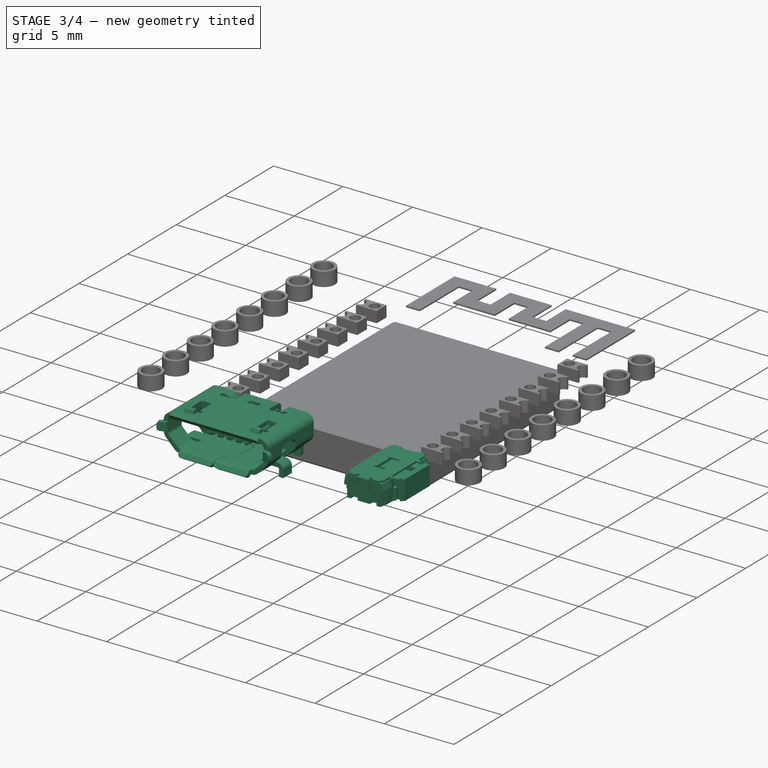
[diagram: stage 3 of 4 — iso view after this stage's code; geometry added in this stage tinted green]
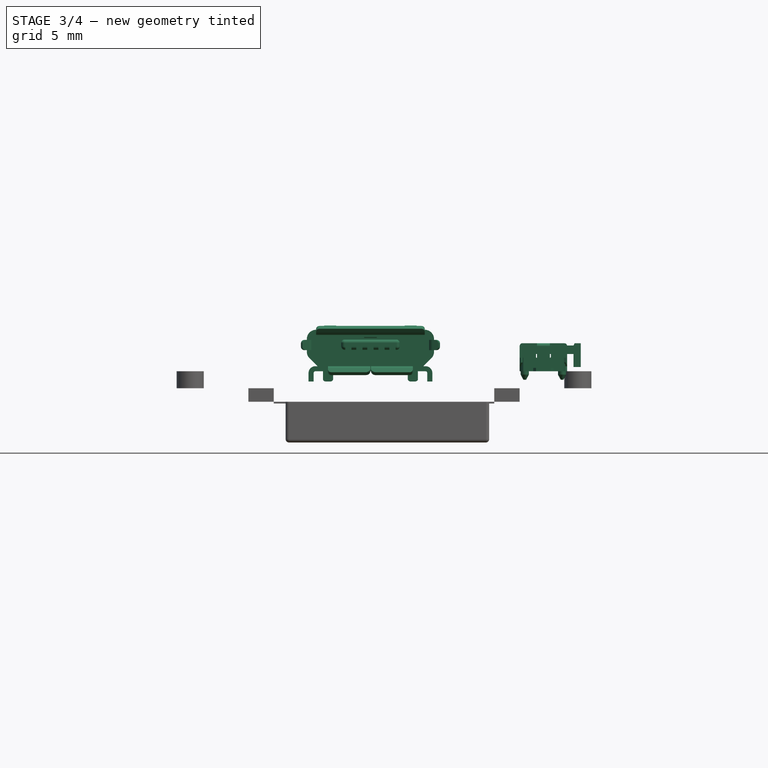
[diagram: stage 3 of 4 — front view after this stage's code; geometry added in this stage tinted green]
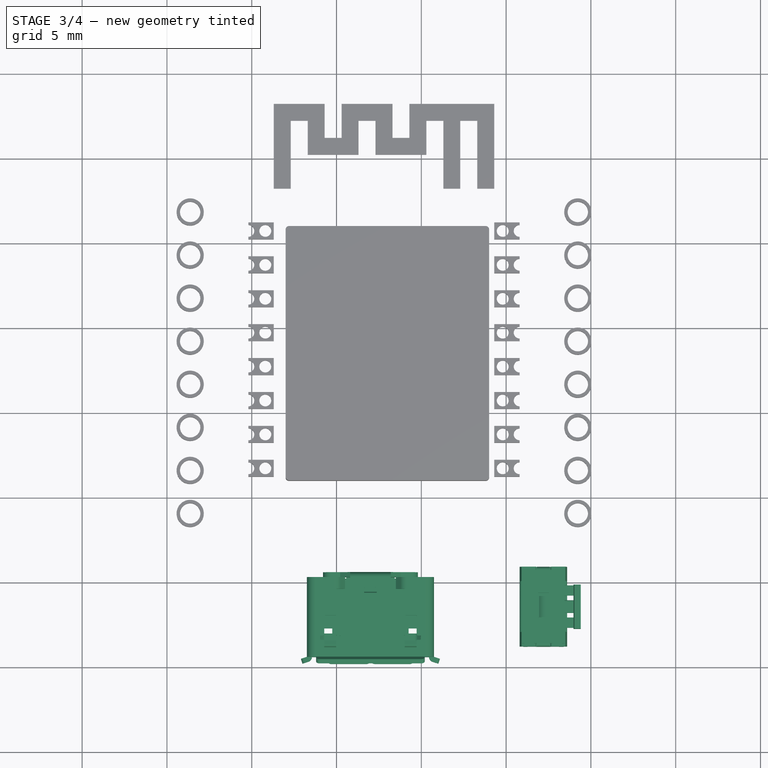
[diagram: stage 3 of 4 — top view after this stage's code; geometry added in this stage tinted green]
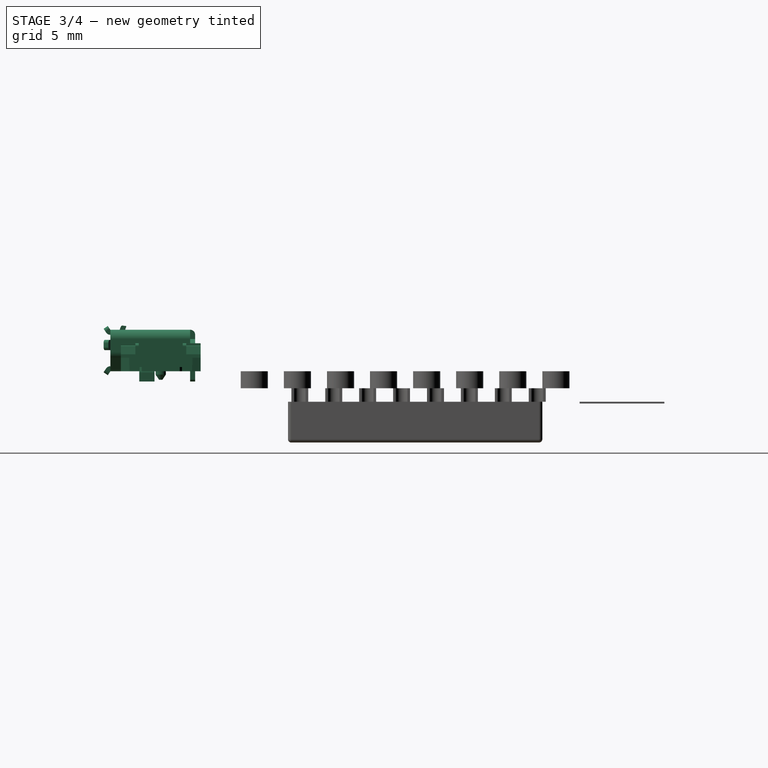
[diagram: stage 3 of 4 — right view after this stage's code; geometry added in this stage tinted green]
FEATURE [Part::Feature] Part__Feature002  label="usb001"
  shape: bbox 8.2 x 3.3 x 5.4 mm, 428 faces (baked)
FEATURE [Part::FeaturePython] Clone004  label="Clone of usb"  # Draft clone (typed FeaturePython)
  Objects = -> [Part__Feature002]
  Placement = pos=(12,2.87788,2.225) rot=(1,0,0;1.5708rad)
  Scale = (1,1,1)
FEATURE [Part::Feature] Part__Feature006  label="cover"
  shape: bbox 3.5 x 4.7 x 1.35 mm, 130 faces (baked)
FEATURE [Part::Feature] Part__Feature005  label="stem"
  shape: bbox 3.9 x 4 x 1.4 mm, 40 faces (baked)
FEATURE [Part::Feature] Part__Feature007  label="frame"
  shape: bbox 3.5 x 4.7 x 2.02 mm, 116 faces (baked)
FEATURE [App::DocumentObjectGroup] Group001
  Group = -> [Part__Feature006,Part__Feature005,Part__Feature007]
FEATURE [Part::FeaturePython] Clone005  label="Clone of switch"  # Draft clone (typed FeaturePython)
  Objects = -> [Group001]
  Placement = pos=(22.2,3.5,1) rot=(0,0,1;0rad)
  Scale = (0.8,1,1)
FEATURE [Part::Fillet] Fillet
  Base = -> Clone002
  Edges = 8 edges r=0.2: [Edge1,Edge2,Edge3,Edge5,Edge6,Edge8,Edge9,Edge11]
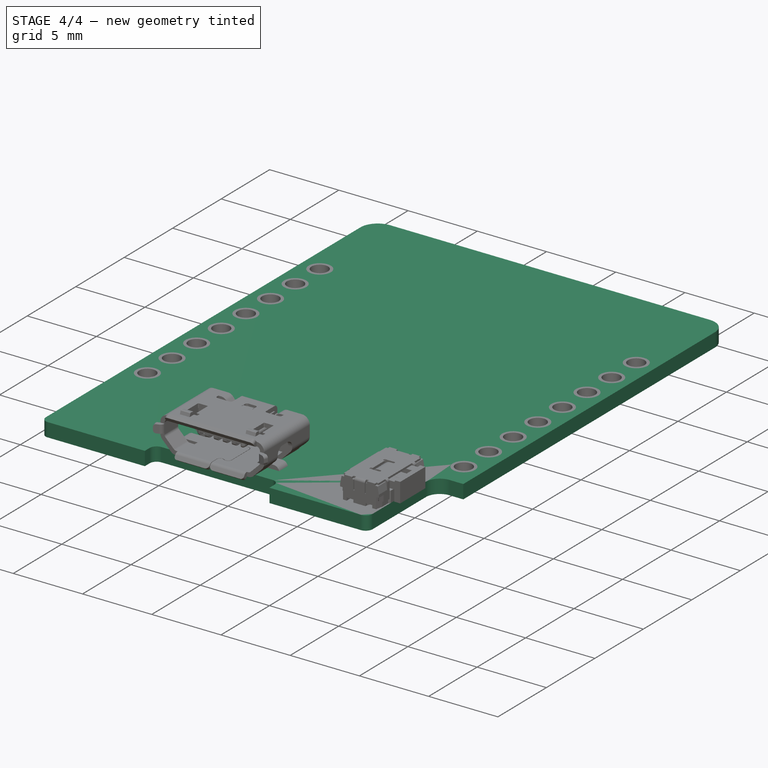
[diagram: stage 4 of 4 — iso view after this stage's code; geometry added in this stage tinted green]
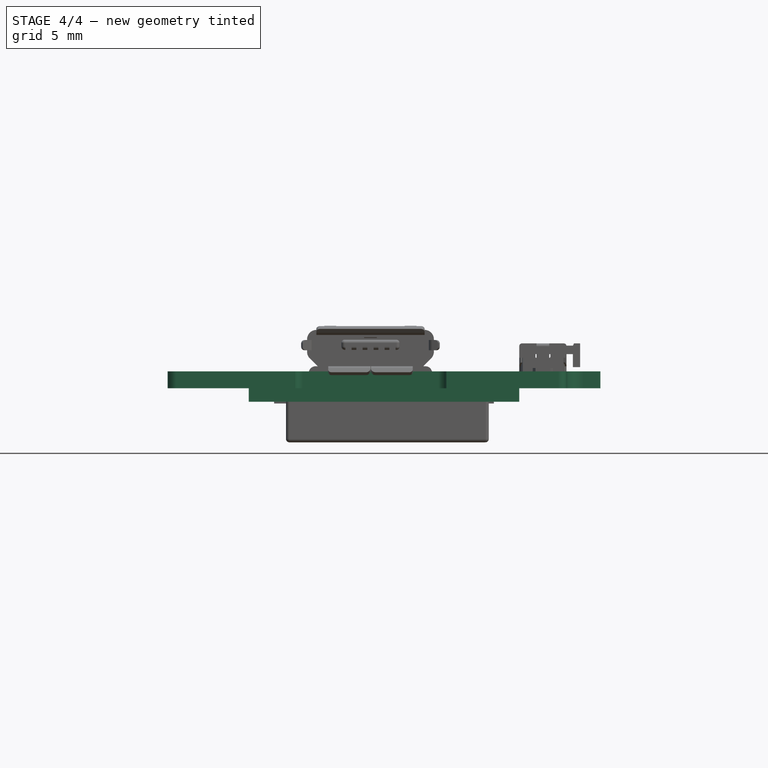
[diagram: stage 4 of 4 — front view after this stage's code; geometry added in this stage tinted green]
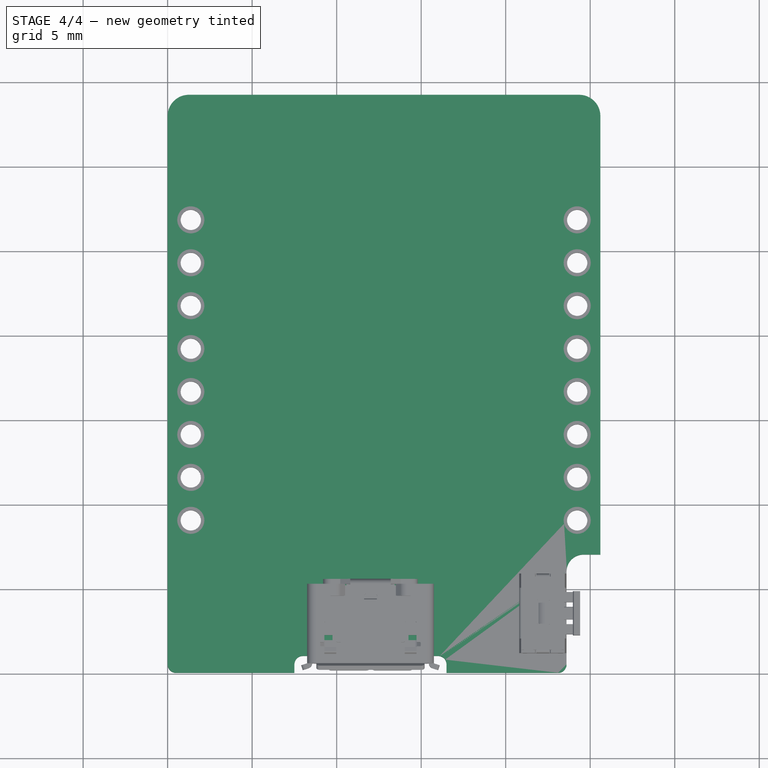
[diagram: stage 4 of 4 — top view after this stage's code; geometry added in this stage tinted green]
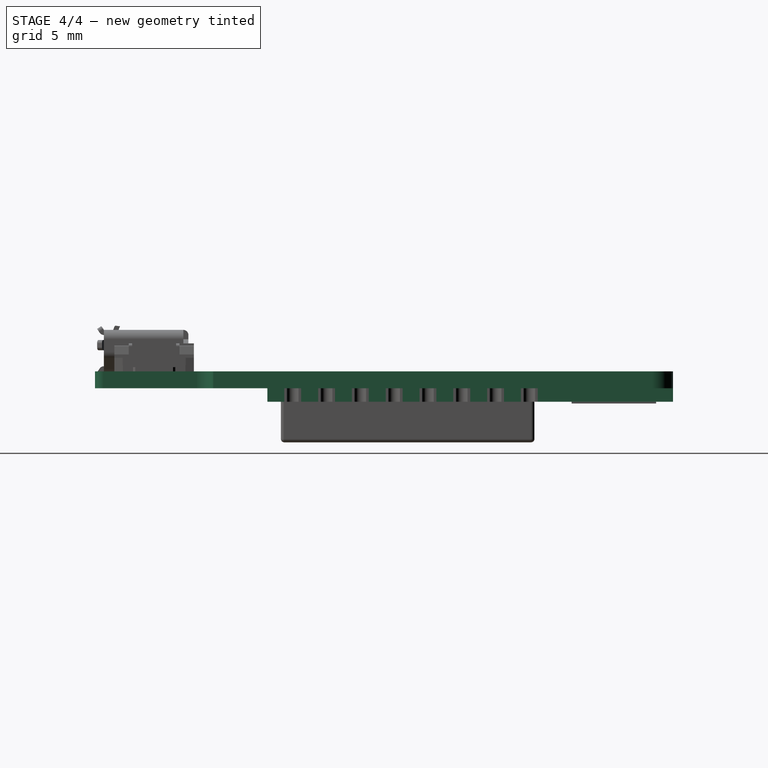
[diagram: stage 4 of 4 — right view after this stage's code; geometry added in this stage tinted green]
FEATURE [Sketcher::SketchObject] Sketch  label="pcb-base"
  sketch-geometry (59):
    g0: LineSegment StartX=1.25 StartY=34.2 StartZ=0 EndX=24.35 EndY=34.2 EndZ=0
    g1: LineSegment StartX=25.6 StartY=32.95 StartZ=0 EndX=25.6 EndY=7 EndZ=0
    g2: LineSegment StartX=25.6 StartY=7 StartZ=0 EndX=24.6 EndY=7 EndZ=0
    g3: LineSegment StartX=23.6 StartY=6 StartZ=0 EndX=23.6 EndY=0.5 EndZ=0
    g4: LineSegment StartX=0 StartY=0.5 StartZ=0 EndX=0 EndY=32.95 EndZ=0
    g5: ArcOfCircle CenterX=24.35 CenterY=32.95 CenterZ=0 NormalX=0 NormalY=0 NormalZ=1 Radius=1.25 StartAngle=0 EndAngle=1.5708
    g6: ArcOfCircle CenterX=1.25 CenterY=32.95 CenterZ=0 NormalX=0 NormalY=0 NormalZ=1 Radius=1.25 StartAngle=1.5708 EndAngle=3.14159
    g7: ArcOfCircle CenterX=0.5 CenterY=0.5 CenterZ=0 NormalX=0 NormalY=0 NormalZ=1 Radius=0.5 StartAngle=3.14159 EndAngle=4.71239
    g8: ArcOfCircle CenterX=23.1 CenterY=0.5 CenterZ=0 NormalX=0 NormalY=0 NormalZ=1 Radius=0.5 StartAngle=4.71239 EndAngle=6.28319
    g9: ArcOfCircle CenterX=24.6 CenterY=6 CenterZ=0 NormalX=0 NormalY=0 NormalZ=1 Radius=1 StartAngle=1.5708 EndAngle=3.14159
    g10: Circle CenterX=1.37 CenterY=26.8 CenterZ=0 NormalX=0 NormalY=0 NormalZ=1 Radius=0.8
    g11: LineSegment [constr] StartX=1.37 StartY=26.8 StartZ=0 EndX=0 EndY=26.8 EndZ=0
    g12: Circle CenterX=1.37 CenterY=24.26 CenterZ=0 NormalX=0 NormalY=0 NormalZ=1 Radius=0.8
    g13: LineSegment [constr] StartX=1.37 StartY=26.8 StartZ=0 EndX=1.37 EndY=24.26 EndZ=0
    g14: Circle CenterX=1.37 CenterY=21.72 CenterZ=0 NormalX=0 NormalY=0 NormalZ=1 Radius=0.8
    g15: LineSegment [constr] StartX=1.37 StartY=24.26 StartZ=0 EndX=1.37 EndY=21.72 EndZ=0
    g16: Circle CenterX=1.37 CenterY=19.18 CenterZ=0 NormalX=0 NormalY=0 NormalZ=1 Radius=0.8
    g17: LineSegment [constr] StartX=1.37 StartY=21.72 StartZ=0 EndX=1.37 EndY=19.18 EndZ=0
    g18: Circle CenterX=1.37 CenterY=16.64 CenterZ=0 NormalX=0 NormalY=0 NormalZ=1 Radius=0.8
    g19: LineSegment [constr] StartX=1.37 StartY=19.18 StartZ=0 EndX=1.37 EndY=16.64 EndZ=0
    g20: Circle CenterX=1.37 CenterY=14.1 CenterZ=0 NormalX=0 NormalY=0 NormalZ=1 Radius=0.8
    g21: LineSegment [constr] StartX=1.37 StartY=16.64 StartZ=0 EndX=1.37 EndY=14.1 EndZ=0
    g22: Circle CenterX=1.37 CenterY=11.56 CenterZ=0 NormalX=0 NormalY=0 NormalZ=1 Radius=0.8
    g23: LineSegment [constr] StartX=1.37 StartY=14.1 StartZ=0 EndX=1.37 EndY=11.56 EndZ=0
    g24: Circle CenterX=1.37 CenterY=9.02 CenterZ=0 NormalX=0 NormalY=0 NormalZ=1 Radius=0.8
    g25: LineSegment [constr] StartX=1.37 StartY=11.56 StartZ=0 EndX=1.37 EndY=9.02 EndZ=0
    g26: LineSegment StartX=0.5 StartY=0 StartZ=0 EndX=7.5 EndY=0 EndZ=0
    g27: LineSegment StartX=7.5 StartY=0 StartZ=0 EndX=7.5 EndY=0.5 EndZ=0
    g28: LineSegment StartX=16.5 StartY=0.5 StartZ=0 EndX=16.5 EndY=0 EndZ=0
    g29: LineSegment StartX=8 StartY=1 StartZ=0 EndX=16 EndY=1 EndZ=0
    g30: LineSegment StartX=16.5 StartY=0 StartZ=0 EndX=23.1 EndY=0 EndZ=0
    g31: ArcOfCircle CenterX=8 CenterY=0.5 CenterZ=0 NormalX=0 NormalY=0 NormalZ=1 Radius=0.5 StartAngle=1.5708 EndAngle=3.14159
    g32: ArcOfCircle CenterX=16 CenterY=0.5 CenterZ=0 NormalX=0 NormalY=0 NormalZ=1 Radius=0.5 StartAngle=0 EndAngle=1.5708
    g33: LineSegment [constr] StartX=7.5 StartY=0 StartZ=0 EndX=16.5 EndY=0 EndZ=0
    g34: LineSegment [constr] StartX=23.1 StartY=0.5 StartZ=0 EndX=0.5 EndY=0.5 EndZ=0
    g35: LineSegment [constr] StartX=23.1 StartY=0.5 StartZ=0 EndX=23.1 EndY=0 EndZ=0
    g36: LineSegment [constr] StartX=23.1 StartY=0.5 StartZ=0 EndX=23.6 EndY=0.5 EndZ=0
    g37: LineSegment [constr] StartX=0.5 StartY=0.5 StartZ=0 EndX=0 EndY=0.5 EndZ=0
    g38: LineSegment [constr] StartX=0.5 StartY=0 StartZ=0 EndX=0.5 EndY=0.5 EndZ=0
    g39: Circle CenterX=24.23 CenterY=26.8 CenterZ=0 NormalX=0 NormalY=0 NormalZ=1 Radius=0.8
    g40: Circle CenterX=24.23 CenterY=24.26 CenterZ=0 NormalX=0 NormalY=0 NormalZ=1 Radius=0.8
    g41: LineSegment [constr] StartX=24.23 StartY=26.8 StartZ=0 EndX=24.23 EndY=24.26 EndZ=0
    g42: Circle CenterX=24.23 CenterY=21.72 CenterZ=0 NormalX=0 NormalY=0 NormalZ=1 Radius=0.8
    g43: LineSegment [constr] StartX=24.23 StartY=24.26 StartZ=0 EndX=24.23 EndY=21.72 EndZ=0
    g44: Circle CenterX=24.23 CenterY=19.18 CenterZ=0 NormalX=0 NormalY=0 NormalZ=1 Radius=0.8
    g45: LineSegment [constr] StartX=24.23 StartY=21.72 StartZ=0 EndX=24.23 EndY=19.18 EndZ=0
    g46: Circle CenterX=24.23 CenterY=16.64 CenterZ=0 NormalX=0 NormalY=0 NormalZ=1 Radius=0.8
    g47: LineSegment [constr] StartX=24.23 StartY=19.18 StartZ=0 EndX=24.23 EndY=16.64 EndZ=0
    g48: Circle CenterX=24.23 CenterY=14.1 CenterZ=0 NormalX=0 NormalY=0 NormalZ=1 Radius=0.8
    g49: LineSegment [constr] StartX=24.23 StartY=16.64 StartZ=0 EndX=24.23 EndY=14.1 EndZ=0
    g50: Circle CenterX=24.23 CenterY=11.56 CenterZ=0 NormalX=0 NormalY=0 NormalZ=1 Radius=0.8
    g51: LineSegment [constr] StartX=24.23 StartY=14.1 StartZ=0 EndX=24.23 EndY=11.56 EndZ=0
    g52: Circle CenterX=24.23 CenterY=9.02 CenterZ=0 NormalX=0 NormalY=0 NormalZ=1 Radius=0.8
    g53: LineSegment [constr] StartX=24.23 StartY=11.56 StartZ=0 EndX=24.23 EndY=9.02 EndZ=0
    g54: LineSegment [constr] StartX=24.23 StartY=26.8 StartZ=0 EndX=24.23 EndY=34.2 EndZ=0
    g55: LineSegment [constr] StartX=24.23 StartY=26.8 StartZ=0 EndX=25.6 EndY=26.8 EndZ=0
    g56: LineSegment [constr] StartX=1.37 StartY=26.8 StartZ=0 EndX=1.37 EndY=34.2 EndZ=0
    g57: LineSegment [constr] StartX=0 StartY=0.5 StartZ=0 EndX=0 EndY=0 EndZ=0
    g58: LineSegment [constr] StartX=0 StartY=0 StartZ=0 EndX=0.5 EndY=0 EndZ=0
  constraints (152):
    c: Horizontal(g0)
    c: Vertical(g1)
    c: Horizontal(g2)
    c: Vertical(g3)
    c: Vertical(g4)
    c: Tangent(g0,g5) = 1.5708
    c: Tangent(g1,g5) = 1.5708
    c: Tangent(g4,g6) = 1.5708
    c: Tangent(g0,g6) = 1.5708
    c: Tangent(g3,g8) = 1.5708
    c: Tangent(g3,g9) = -1.5708
    c: Tangent(g2,g9) = -1.5708
    c: Equal(g5,g6)
    c: DistanceX(g4,g1) = 25.6
    c: Radius(g7) = 0.5
    c: Radius(g5) = 1.25
    c: Coincident(g11,g10)
    c: Horizontal(g11)
    c: DistanceX(g11,g11) = 1.37
    c: Radius(g10) = 0.8
    c: PointOnObject(g11,g4)
    c: Equal(g10,g12) = 0.6
    c: Coincident(g10,g13)
    c: Coincident(g12,g13)
    c: Distance(g13) = 2.54
    c: Angle(g13) = -1.5708
    c: Equal(g10,g14) = 0.6
    c: Coincident(g12,g15)
    c: Coincident(g14,g15)
    c: Equal(g13,g15)
    c: Parallel(g15,g13)
    c: Equal(g10,g16) = 0.6
    c: Coincident(g14,g17)
    c: Coincident(g16,g17)
    c: Equal(g13,g17)
    c: Parallel(g17,g13)
    c: Equal(g10,g18) = 0.6
    c: Coincident(g16,g19)
    c: Coincident(g18,g19)
    c: Equal(g13,g19)
    c: Parallel(g19,g13)
    c: Equal(g10,g20) = 0.6
    c: Coincident(g18,g21)
    c: Coincident(g20,g21)
    c: Equal(g13,g21)
    c: Parallel(g21,g13)
    c: Equal(g10,g22) = 0.6
    c: Coincident(g20,g23)
    c: Coincident(g22,g23)
    c: Equal(g13,g23)
    c: Parallel(g23,g13)
    c: Equal(g10,g24) = 0.6
    c: Coincident(g22,g25)
    c: Coincident(g24,g25)
    c: Equal(g13,g25)
    c: Parallel(g25,g13)
    c: Coincident(g1,g2)
    c: Radius(g9) = 1
    c: Tangent(g7,g26) = -1.5708
    c: Vertical(g27)
    c: Vertical(g28)
    c: Horizontal(g29)
    c: Coincident(g30,g8)
    c: Horizontal(g30)
    c: Tangent(g27,g31) = 1.5708
    c: Tangent(g29,g31) = 1.5708
    c: Tangent(g29,g32) = 1.5708
    c: Tangent(g28,g32) = 1.5708
    c: Horizontal(g26)
    c: Radius(g31) = 0.5
    c: Coincident(g33,g26)
    c: Horizontal(g33)
    c: Coincident(g30,g33)
    c: DistanceX(g27,g28) = 9
    c: DistanceX(g3,g1) = 2
    c: Coincident(g4,g7)
    c: Coincident(g34,g8)
    c: Coincident(g34,g7)
    c: Horizontal(g34)
    c: Coincident(g35,g8)
    c: Coincident(g35,g8)
    c: Coincident(g36,g3)
    c: Horizontal(g36)
    c: Vertical(g35)
    c: Coincident(g37,g7)
    c: Coincident(g37,g4)
    c: Coincident(g38,g7)
    c: Vertical(g38)
    c: Horizontal(g37)
    c: Coincident(g28,g30)
    c: Coincident(g26,g27)
    c: DistanceY(g26,g29) = 1
    c: Coincident(g8,g36)
    c: Equal(g32,g31)
    c: DistanceY(g8,g1) = 7
    c: DistanceY(g7,g0) = 34.2
    c: Coincident(g7,g38)
    c: DistanceY(g10,g0) = 7.4
    c: Radius(g39) = 0.8
    c: Equal(g39,g40) = 0.6
    c: Coincident(g39,g41)
    c: Coincident(g40,g41)
    c: Angle(g41) = -1.5708
    c: Equal(g39,g42) = 0.6
    c: Coincident(g40,g43)
    c: Coincident(g42,g43)
    c: Equal(g41,g43)
    c: Parallel(g43,g41)
    c: Equal(g39,g44) = 0.6
    c: Coincident(g42,g45)
    c: Coincident(g44,g45)
    c: Equal(g41,g45)
    c: Parallel(g45,g41)
    c: Equal(g39,g46) = 0.6
    c: Coincident(g44,g47)
    c: Coincident(g46,g47)
    c: Equal(g41,g47)
    c: Parallel(g47,g41)
    c: Equal(g39,g48) = 0.6
    c: Coincident(g46,g49)
    c: Coincident(g48,g49)
    c: Equal(g41,g49)
    c: Parallel(g49,g41)
    c: Equal(g39,g50) = 0.6
    c: Coincident(g48,g51)
    c: Coincident(g50,g51)
    c: Equal(g41,g51)
    c: Parallel(g51,g41)
    c: Equal(g39,g52) = 0.6
    c: Coincident(g50,g53)
    c: Coincident(g52,g53)
    c: Equal(g41,g53)
    c: Parallel(g53,g41)
    c: Equal(g13,g41)
    c: Coincident(g54,g39)
    c: PointOnObject(g54,g0)
    c: Vertical(g54)
    c: Coincident(g55,g39)
    c: Horizontal(g55)
    c: Coincident(g56,g10)
    c: PointOnObject(g56,g0)
    c: Vertical(g56)
    c: Equal(g54,g56)
    c: Equal(g55,g11)
    c: PointOnObject(g55,g1)
    c: Coincident(g57,g4)
    c: Vertical(g57)
    c: Coincident(g58,g57)
    c: Coincident(g58,g7)
    c: Horizontal(g58)
    c: Coincident(g57,g-1)
    c: DistanceX(g26,g26) = 7
FEATURE [Part::Feature] Part__Feature  label="SOLID"
  shape: bbox 8.2 x 3.3 x 5.4 mm, 428 faces (baked)
FEATURE [Part::Feature] Part__Feature001  label="COMPOUND"
  shape: bbox 8.21 x 2e-07 x 4.3 mm, 0 faces, 0 solids (baked)
FEATURE [App::DocumentObjectGroup] Group  label="usb"
  Group = -> [Part__Feature,Part__Feature001]
FEATURE [Sketcher::SketchObject] Sketch001  label="pcb-wifi-sketch"
  sketch-geometry (68):
    g0: LineSegment StartX=0 StartY=24 StartZ=0 EndX=16 EndY=24 EndZ=0
    g1: LineSegment StartX=16 StartY=0 StartZ=0 EndX=0 EndY=0 EndZ=0
    g2: LineSegment StartX=0 StartY=1 StartZ=0 EndX=1.5 EndY=1 EndZ=0
    g3: LineSegment StartX=1.5 StartY=1 StartZ=0 EndX=1.5 EndY=2 EndZ=0
    g4: LineSegment StartX=1.5 StartY=2 StartZ=0 EndX=0 EndY=2 EndZ=0
    g5: LineSegment StartX=14.5 StartY=1 StartZ=0 EndX=16 EndY=1 EndZ=0
    g6: LineSegment StartX=16 StartY=2 StartZ=0 EndX=14.5 EndY=2 EndZ=0
    g7: LineSegment StartX=14.5 StartY=2 StartZ=0 EndX=14.5 EndY=1 EndZ=0
    g8: LineSegment StartX=0 StartY=3 StartZ=0 EndX=1.5 EndY=3 EndZ=0
    g9: LineSegment StartX=1.5 StartY=3 StartZ=0 EndX=1.5 EndY=4 EndZ=0
    g10: LineSegment StartX=1.5 StartY=4 StartZ=0 EndX=0 EndY=4 EndZ=0
    g11: LineSegment StartX=14.5 StartY=3 StartZ=0 EndX=16 EndY=3 EndZ=0
    g12: LineSegment StartX=16 StartY=4 StartZ=0 EndX=14.5 EndY=4 EndZ=0
    g13: LineSegment StartX=14.5 StartY=4 StartZ=0 EndX=14.5 EndY=3 EndZ=0
    g14: LineSegment StartX=0 StartY=5 StartZ=0 EndX=1.5 EndY=5 EndZ=0
    g15: LineSegment StartX=1.5 StartY=5 StartZ=0 EndX=1.5 EndY=6 EndZ=0
    g16: LineSegment StartX=1.5 StartY=6 StartZ=0 EndX=0 EndY=6 EndZ=0
    g17: LineSegment StartX=14.5 StartY=5 StartZ=0 EndX=16 EndY=5 EndZ=0
    g18: LineSegment StartX=16 StartY=6 StartZ=0 EndX=14.5 EndY=6 EndZ=0
    g19: LineSegment StartX=14.5 StartY=6 StartZ=0 EndX=14.5 EndY=5 EndZ=0
    g20: LineSegment StartX=0 StartY=7 StartZ=0 EndX=1.5 EndY=7 EndZ=0
    g21: LineSegment StartX=1.5 StartY=7 StartZ=0 EndX=1.5 EndY=8 EndZ=0
    g22: LineSegment StartX=1.5 StartY=8 StartZ=0 EndX=0 EndY=8 EndZ=0
    g23: LineSegment StartX=14.5 StartY=7 StartZ=0 EndX=16 EndY=7 EndZ=0
    g24: LineSegment StartX=16 StartY=8 StartZ=0 EndX=14.5 EndY=8 EndZ=0
    g25: LineSegment StartX=14.5 StartY=8 StartZ=0 EndX=14.5 EndY=7 EndZ=0
    g26: LineSegment StartX=0 StartY=9 StartZ=0 EndX=1.5 EndY=9 EndZ=0
    g27: LineSegment StartX=1.5 StartY=9 StartZ=0 EndX=1.5 EndY=10 EndZ=0
    g28: LineSegment StartX=1.5 StartY=10 StartZ=0 EndX=0 EndY=10 EndZ=0
    g29: LineSegment StartX=14.5 StartY=9 StartZ=0 EndX=16 EndY=9 EndZ=0
    g30: LineSegment StartX=16 StartY=10 StartZ=0 EndX=14.5 EndY=10 EndZ=0
    g31: LineSegment StartX=14.5 StartY=10 StartZ=0 EndX=14.5 EndY=9 EndZ=0
    g32: LineSegment StartX=0 StartY=11 StartZ=0 EndX=1.5 EndY=11 EndZ=0
    g33: LineSegment StartX=1.5 StartY=11 StartZ=0 EndX=1.5 EndY=12 EndZ=0
    g34: LineSegment StartX=1.5 StartY=12 StartZ=0 EndX=0 EndY=12 EndZ=0
    g35: LineSegment StartX=14.5 StartY=11 StartZ=0 EndX=16 EndY=11 EndZ=0
    g36: LineSegment StartX=16 StartY=12 StartZ=0 EndX=14.5 EndY=12 EndZ=0
    g37: LineSegment StartX=14.5 StartY=12 StartZ=0 EndX=14.5 EndY=11 EndZ=0
    g38: LineSegment StartX=0 StartY=13 StartZ=0 EndX=1.5 EndY=13 EndZ=0
    g39: LineSegment StartX=1.5 StartY=13 StartZ=0 EndX=1.5 EndY=14 EndZ=0
    g40: LineSegment StartX=1.5 StartY=14 StartZ=0 EndX=0 EndY=14 EndZ=0
    g41: LineSegment StartX=14.5 StartY=13 StartZ=0 EndX=16 EndY=13 EndZ=0
    g42: LineSegment StartX=16 StartY=14 StartZ=0 EndX=14.5 EndY=14 EndZ=0
    g43: LineSegment StartX=14.5 StartY=14 StartZ=0 EndX=14.5 EndY=13 EndZ=0
    g44: LineSegment StartX=0 StartY=15 StartZ=0 EndX=1.5 EndY=15 EndZ=0
    g45: LineSegment StartX=1.5 StartY=15 StartZ=0 EndX=1.5 EndY=16 EndZ=0
    g46: LineSegment StartX=1.5 StartY=16 StartZ=0 EndX=0 EndY=16 EndZ=0
    g47: LineSegment StartX=14.5 StartY=15 StartZ=0 EndX=16 EndY=15 EndZ=0
    g48: LineSegment StartX=16 StartY=16 StartZ=0 EndX=14.5 EndY=16 EndZ=0
    g49: LineSegment StartX=14.5 StartY=16 StartZ=0 EndX=14.5 EndY=15 EndZ=0
    g50: LineSegment StartX=16 StartY=24 StartZ=0 EndX=16 EndY=16 EndZ=0
    g51: LineSegment StartX=0 StartY=24 StartZ=0 EndX=0 EndY=16 EndZ=0
    g52: LineSegment StartX=16 StartY=15 StartZ=0 EndX=16 EndY=14 EndZ=0
    g53: LineSegment StartX=16 StartY=13 StartZ=0 EndX=16 EndY=12 EndZ=0
    g54: LineSegment StartX=16 StartY=11 StartZ=0 EndX=16 EndY=10 EndZ=0
    g55: LineSegment StartX=16 StartY=9 StartZ=0 EndX=16 EndY=8 EndZ=0
    g56: LineSegment StartX=16 StartY=7 StartZ=0 EndX=16 EndY=6 EndZ=0
    g57: LineSegment StartX=16 StartY=5 StartZ=0 EndX=16 EndY=4 EndZ=0
    g58: LineSegment StartX=16 StartY=3 StartZ=0 EndX=16 EndY=2 EndZ=0
    g59: LineSegment StartX=16 StartY=1 StartZ=0 EndX=16 EndY=0 EndZ=0
    g60: LineSegment StartX=0 StartY=0 StartZ=0 EndX=0 EndY=1 EndZ=0
    g61: LineSegment StartX=0 StartY=2 StartZ=0 EndX=0 EndY=3 EndZ=0
    g62: LineSegment StartX=0 StartY=4 StartZ=0 EndX=0 EndY=5 EndZ=0
    g63: LineSegment StartX=0 StartY=6 StartZ=0 EndX=0 EndY=7 EndZ=0
    g64: LineSegment StartX=0 StartY=8 StartZ=0 EndX=0 EndY=9 EndZ=0
    g65: LineSegment StartX=0 StartY=10 StartZ=0 EndX=0 EndY=11 EndZ=0
    g66: LineSegment StartX=0 StartY=12 StartZ=0 EndX=0 EndY=13 EndZ=0
    g67: LineSegment StartX=0 StartY=14 StartZ=0 EndX=0 EndY=15 EndZ=0
  constraints (131):
    c: Horizontal(g0)
    c: Horizontal(g1)
    c: DistanceX(g0,g0) = 16
    c: DistanceY(g1,g0) = 24
    c: Coincident(g1,g-1)
    c: Horizontal(g2)
    c: Coincident(g2,g3)
    c: Vertical(g3)
    c: Coincident(g3,g4)
    c: Horizontal(g4)
    c: Horizontal(g5)
    c: Horizontal(g6)
    c: Coincident(g6,g7)
    c: Vertical(g7)
    c: Coincident(g5,g7)
    c: Horizontal(g8)
    c: Coincident(g8,g9)
    c: Vertical(g9)
    c: Coincident(g9,g10)
    c: Horizontal(g10)
    c: Horizontal(g11)
    c: Horizontal(g12)
    c: Coincident(g12,g13)
    c: Vertical(g13)
    c: Coincident(g11,g13)
    c: Horizontal(g14)
    c: Coincident(g14,g15)
    c: Vertical(g15)
    c: Coincident(g15,g16)
    c: Horizontal(g16)
    c: Horizontal(g17)
    c: Horizontal(g18)
    c: Coincident(g18,g19)
    c: Vertical(g19)
    c: Coincident(g17,g19)
    c: Horizontal(g20)
    c: Coincident(g20,g21)
    c: Vertical(g21)
    c: Coincident(g21,g22)
    c: Horizontal(g22)
    c: Horizontal(g23)
    c: Horizontal(g24)
    c: Coincident(g24,g25)
    c: Vertical(g25)
    c: Coincident(g23,g25)
    c: Horizontal(g26)
    c: Coincident(g26,g27)
    c: Vertical(g27)
    c: Coincident(g27,g28)
    c: Horizontal(g28)
    c: Horizontal(g29)
    c: Horizontal(g30)
    c: Coincident(g30,g31)
    c: Vertical(g31)
    c: Coincident(g29,g31)
    c: Horizontal(g32)
    c: Coincident(g32,g33)
    c: Vertical(g33)
    c: Coincident(g33,g34)
    c: Horizontal(g34)
    c: Horizontal(g35)
    c: Horizontal(g36)
    c: Coincident(g36,g37)
    c: Vertical(g37)
    c: Coincident(g35,g37)
    c: Horizontal(g38)
    c: Coincident(g38,g39)
    c: Vertical(g39)
    c: Coincident(g39,g40)
    c: Horizontal(g40)
    c: Horizontal(g41)
    c: Horizontal(g42)
    c: Coincident(g42,g43)
    c: Vertical(g43)
    c: Coincident(g41,g43)
    c: Horizontal(g44)
    c: Coincident(g44,g45)
    c: Vertical(g45)
    c: Coincident(g45,g46)
    c: Horizontal(g46)
    c: Horizontal(g47)
    c: Horizontal(g48)
    c: Coincident(g48,g49)
    c: Vertical(g49)
    c: Coincident(g47,g49)
    c: Coincident(g0,g50)
    c: Vertical(g50)
    c: Coincident(g51,g0)
    c: Coincident(g51,g46)
    c: Vertical(g51)
    c: Coincident(g52,g47)
    c: Coincident(g52,g42)
    c: Vertical(g52)
    c: Coincident(g53,g41)
    c: Coincident(g53,g36)
    c: Coincident(g54,g35)
    c: Vertical(g54)
    c: Coincident(g55,g29)
    c: Coincident(g55,g24)
    c: Vertical(g55)
    c: Coincident(g56,g23)
    c: Coincident(g56,g18)
    c: Vertical(g56)
    c: Coincident(g57,g17)
    c: Vertical(g57)
    c: Coincident(g58,g6)
    c: Vertical(g58)
    c: Coincident(g59,g5)
    c: Coincident(g59,g1)
    c: Vertical(g59)
    c: Coincident(g60,g2)
    c: Vertical(g60)
    c: Coincident(g61,g4)
    c: Vertical(g61)
    c: Coincident(g62,g10)
    c: Vertical(g62)
    c: Coincident(g63,g16)
    c: Coincident(g63,g20)
    c: Vertical(g63)
    c: Coincident(g64,g22)
    c: Coincident(g64,g26)
    c: Vertical(g64)
    c: Coincident(g65,g28)
    c: Coincident(g65,g32)
    c: Vertical(g65)
    c: Coincident(g66,g34)
    c: Coincident(g66,g38)
    c: Vertical(g66)
    c: Coincident(g67,g40)
    c: Coincident(g67,g44)
    c: Vertical(g67)
FEATURE [Sketcher::SketchObject] Sketch002  label="wifi-module-sketch"
  sketch-geometry (4):
    g0: LineSegment StartX=0 StartY=15 StartZ=0 EndX=12 EndY=15 EndZ=0
    g1: LineSegment StartX=12 StartY=15 StartZ=0 EndX=12 EndY=0 EndZ=0
    g2: LineSegment StartX=12 StartY=0 StartZ=0 EndX=0 EndY=0 EndZ=0
    g3: LineSegment StartX=0 StartY=0 StartZ=0 EndX=0 EndY=15 EndZ=0
  constraints (11):
    c: Coincident(g0,g1)
    c: Coincident(g1,g2)
    c: Coincident(g2,g3)
    c: Coincident(g3,g0)
    c: Horizontal(g0)
    c: Horizontal(g2)
    c: Vertical(g1)
    c: Vertical(g3)
    c: DistanceX(g0,g0) = 12
    c: DistanceY(g1,g1) = 15
    c: Coincident(g2,g-1)
FEATURE [PartDesign::Pad] Pad  label="pcb-bsae"
  Length = 1
  Length2 = 100
  Sketch = -> Sketch
  Type = 0
FEATURE [PartDesign::Pad] Pad002  label="pcb-wifi"
  Length = 0.8
  Length2 = 100
  Sketch = -> Sketch001
  Type = 0
FEATURE [Part::FeaturePython] Clone  label="Clone of pcb-bsae"  # Draft clone (typed FeaturePython)
  Objects = -> [Pad]
  Scale = (1,1,1)
FEATURE [Part::FeaturePython] Clone003  label="Clone of pcb-wifi"  # Draft clone (typed FeaturePython)
  Objects = -> [Pad002]
  Placement = pos=(4.8,10.2,-0.8) rot=(0,0,1;0rad)
  Scale = (1,1,1)
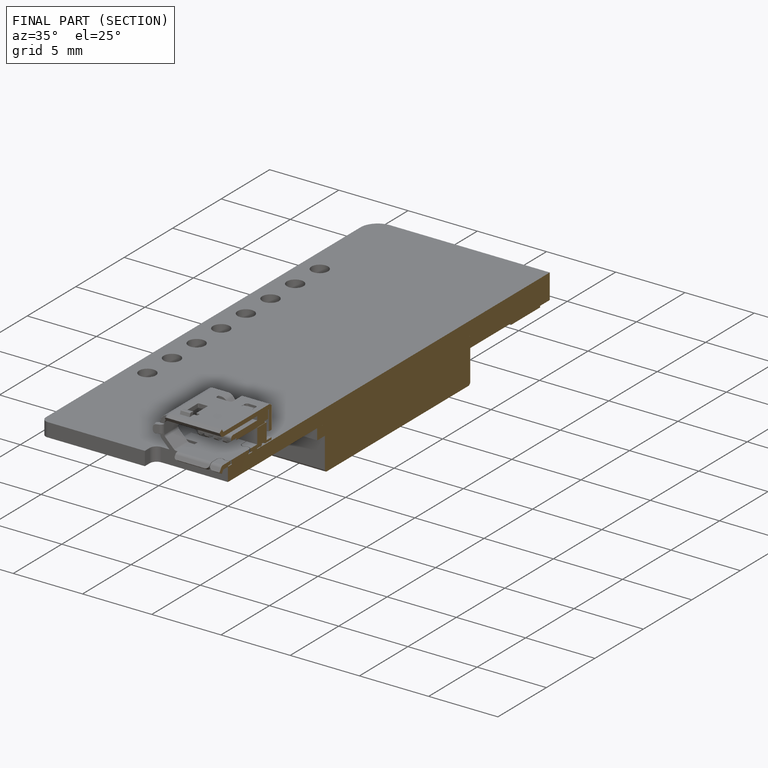
[diagram: finished part — half-section view (interior)]
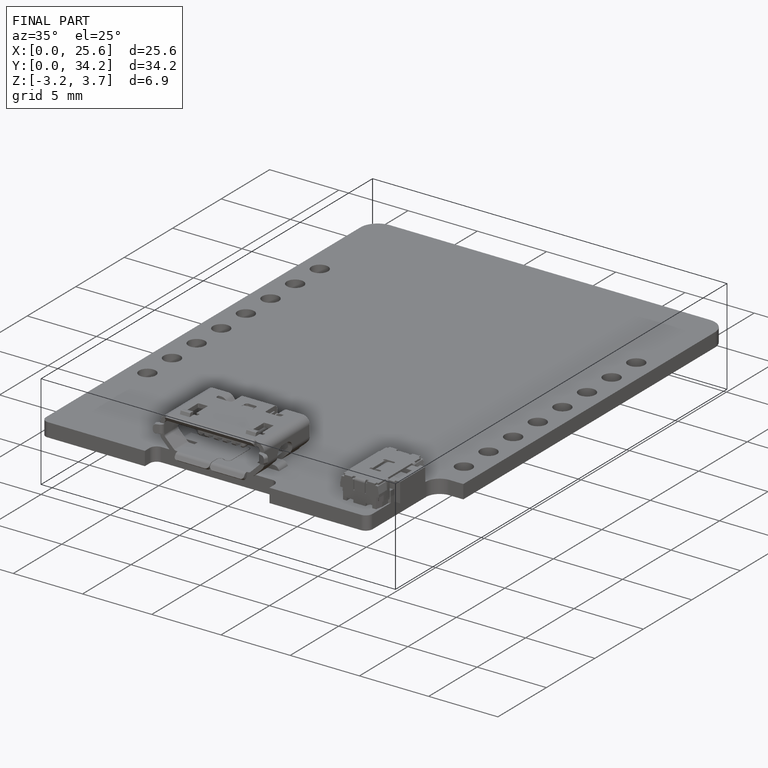
[diagram: finished part — iso view with bounding-box wireframe]
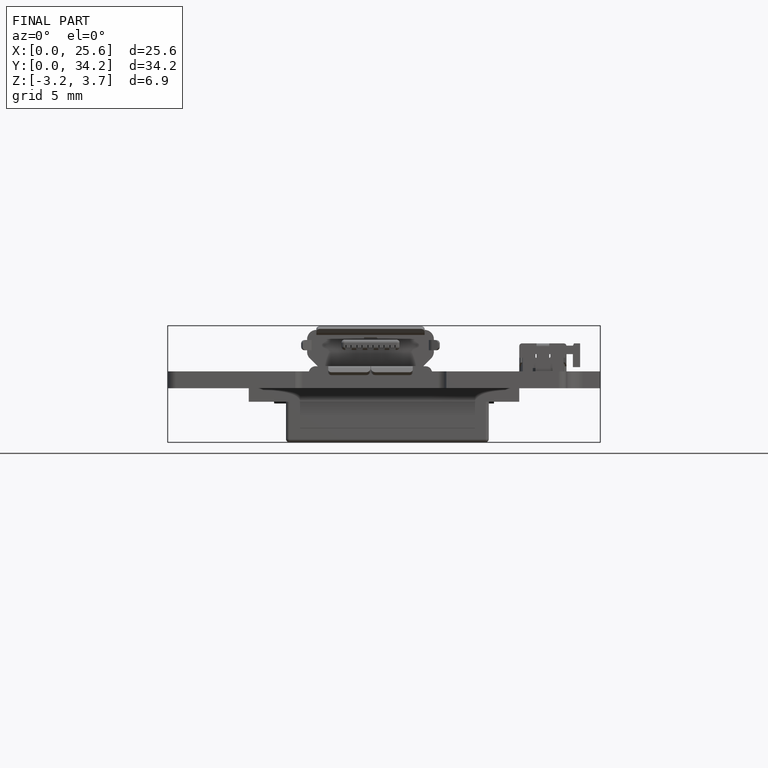
[diagram: finished part — front view with bounding-box wireframe]
